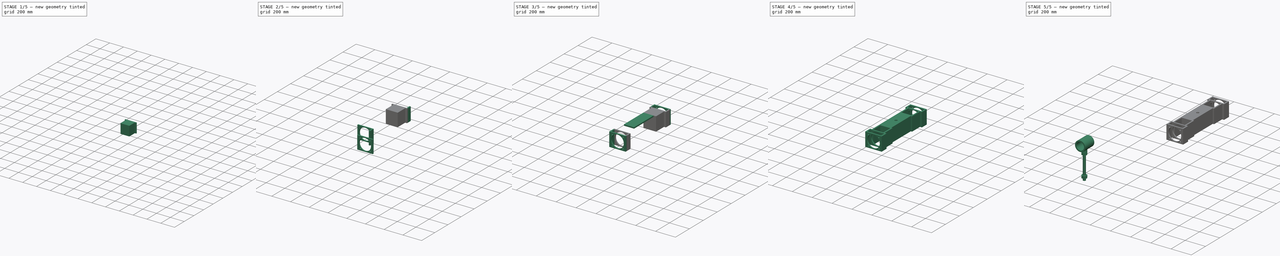
[diagram: build sequence overview — one tinted view per stage of 5, left to right]
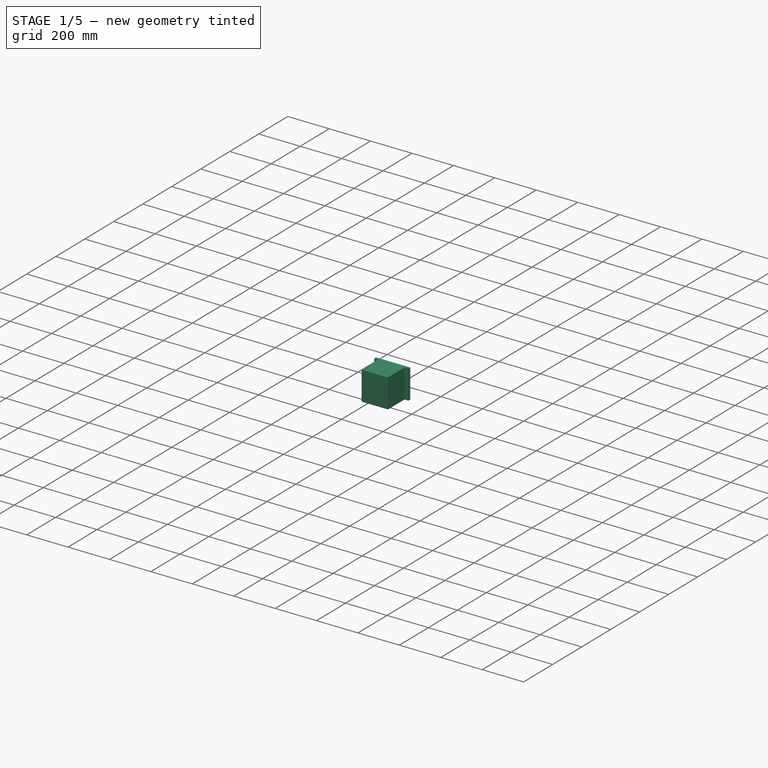
[diagram: stage 1 of 5 — iso view after this stage's code; geometry added in this stage tinted green]
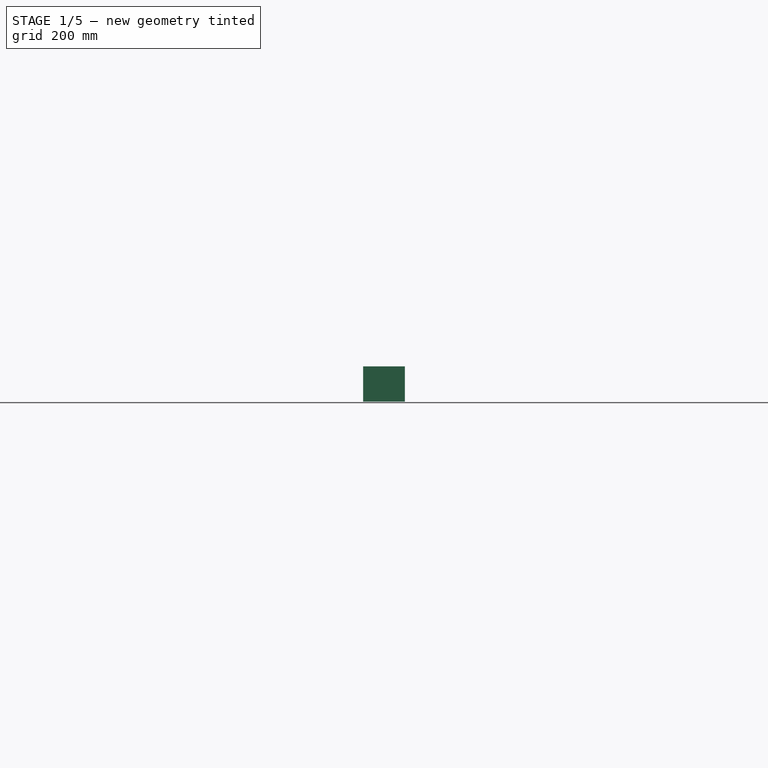
[diagram: stage 1 of 5 — front view after this stage's code; geometry added in this stage tinted green]
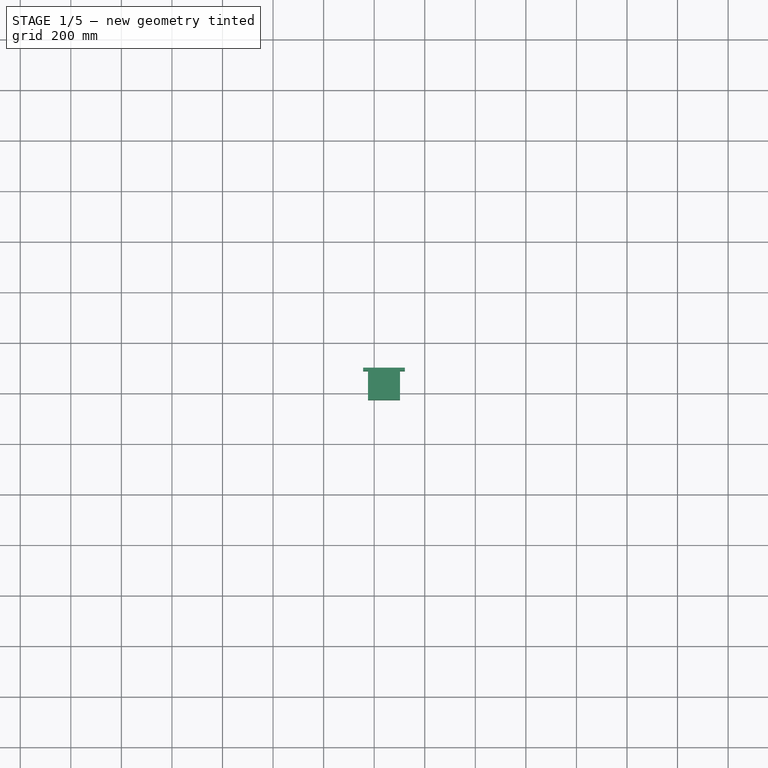
[diagram: stage 1 of 5 — top view after this stage's code; geometry added in this stage tinted green]
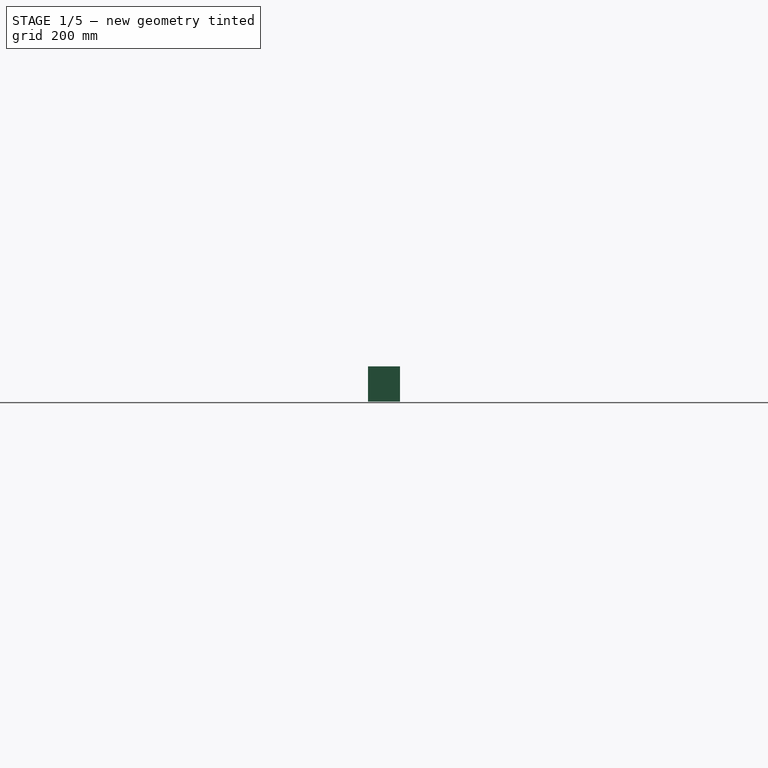
[diagram: stage 1 of 5 — right view after this stage's code; geometry added in this stage tinted green]
FCSTD DOCUMENT  (FreeCAD 0.16R6712 (Git))
Label: MT Tensioner
License: All rights reserved
LicenseURL: http://en.wikipedia.org/wiki/All_rights_reserved
objects: Drawing::FeatureViewPython×28, Part::FeaturePython×9, Part::Box×8, Part::Feature×5, Drawing::FeatureViewPart×5, Sketcher::SketchObject×3, App::DocumentObjectGroup×3, Part::MultiFuse×2, PartDesign::Pocket×2, PartDesign::Pad×1, Part::Cylinder×1, Drawing::FeaturePage×1
note: 34 computed .brp shape members not serialized (recipe doc carries the construction recipe); baked Part::Feature solids carry a one-line shape summary decoded from their .brp

FEATURE [Part::Box] Box  label="Cube"
  Height = 139.7
  Length = 127
  Placement = pos=(-224.637,380.672,-68.4443) rot=(0,0,1;0rad)
  Width = 114.3
FEATURE [Part::Box] Box010  label="Cube010"
  Height = 139.7
  Length = 165.1
  Placement = pos=(-102.435,88.2033,-436.376) rot=(0,0,1;0rad)
  Width = 12.7
FEATURE [Sketcher::SketchObject] Sketch004
  Placement = pos=(-102.435,88.2033,-436.376) rot=(1,0,0;1.5708rad)
  Support = -> Box010 [Face3]
  sketch-geometry (1):
    g0: Circle CenterX=82.55 CenterY=69.85 CenterZ=0 NormalX=0 NormalY=0 NormalZ=1 Radius=63.4873
  constraints (3):
    c: Radius(g0) = 63.4873
    c: DistanceX(g0) = 82.55
    c: DistanceY(g0) = 69.85
FEATURE [PartDesign::Pocket] Pocket
  Length = 12.7
  Placement = pos=(-102.435,88.2033,-436.376) rot=(0,0,1;0rad)
  Sketch = -> Sketch004
  Type = 0
FEATURE [Part::FeaturePython] Clone006  label="Clone of Pocket003005005"  # Draft clone (typed FeaturePython)
  Objects = -> [Pocket]
  Placement = pos=(-243.687,888.672,-68.4443) rot=(0,0,1;0rad)
  Scale = (1,1,1)
FEATURE [Part::FeaturePython] Clone008  label="Clone of Cube"  # Draft clone (typed FeaturePython)
  Objects = -> [Box]
  Placement = pos=(-224.637,774.372,-68.4443) rot=(0,0,1;0rad)
  Scale = (1,1,1)
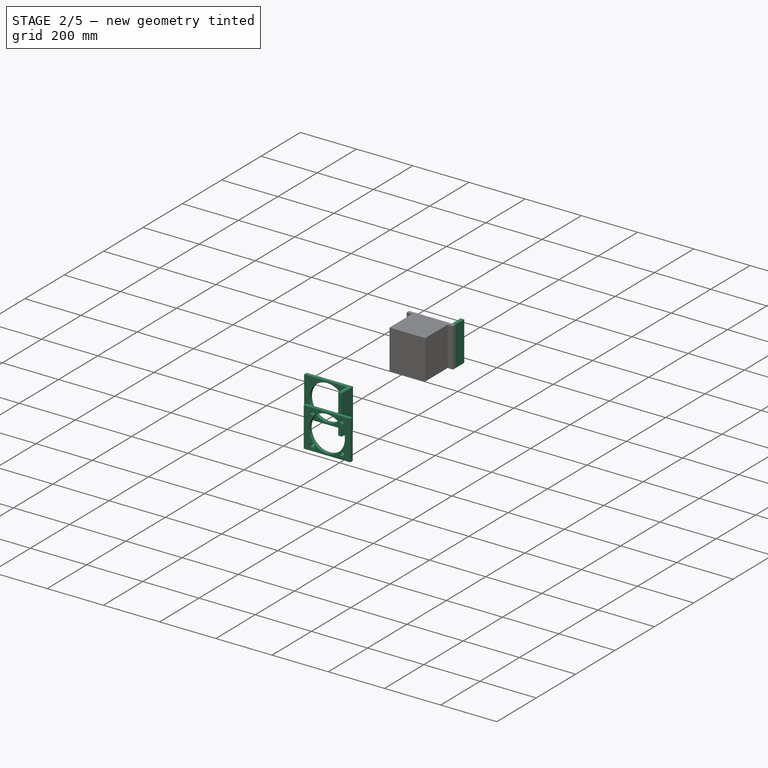
[diagram: stage 2 of 5 — iso view after this stage's code; geometry added in this stage tinted green]
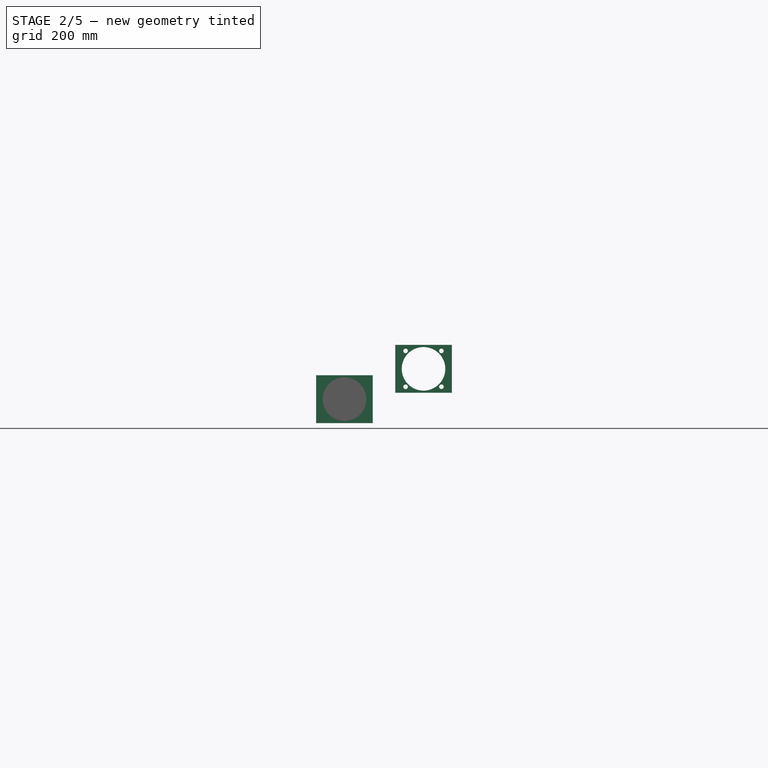
[diagram: stage 2 of 5 — front view after this stage's code; geometry added in this stage tinted green]
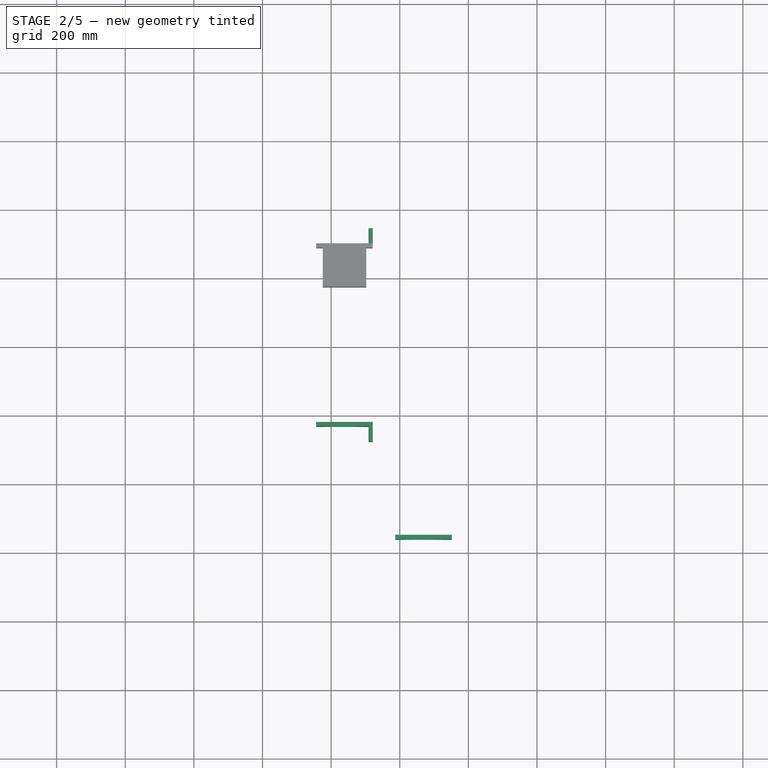
[diagram: stage 2 of 5 — top view after this stage's code; geometry added in this stage tinted green]
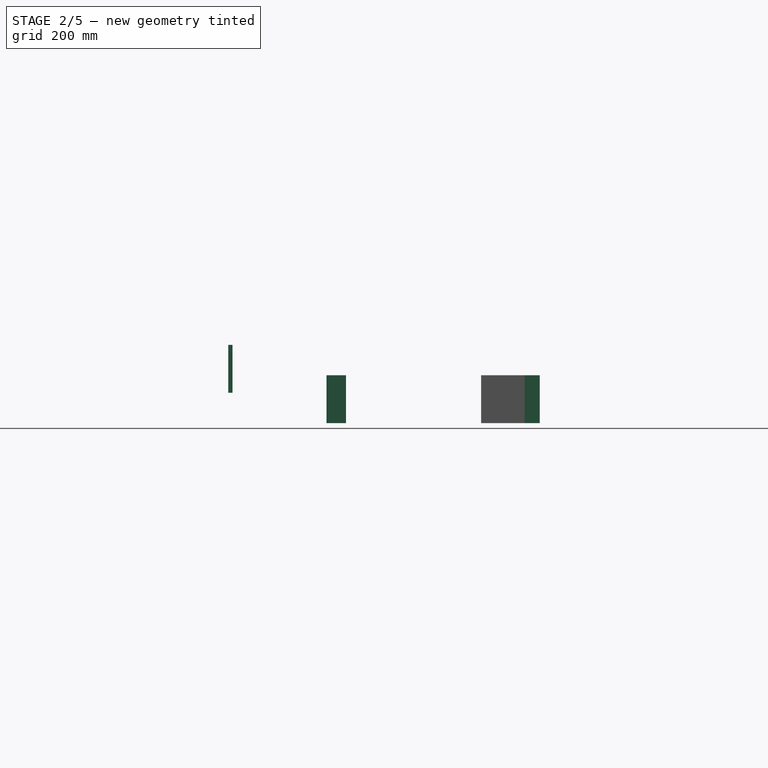
[diagram: stage 2 of 5 — right view after this stage's code; geometry added in this stage tinted green]
FEATURE [Sketcher::SketchObject] Sketch002
  Placement = pos=(0,37.338,0) rot=(0,0.707107,0.707107;3.14159rad)
  sketch-geometry (13):
    g0: Circle CenterX=-121.408 CenterY=142.058 CenterZ=0 NormalX=0 NormalY=0 NormalZ=1 Radius=6.6548
    g1: Circle CenterX=-17.0218 CenterY=142.058 CenterZ=0 NormalX=0 NormalY=0 NormalZ=1 Radius=6.6548
    g2: Circle CenterX=-17.0218 CenterY=37.6712 CenterZ=0 NormalX=0 NormalY=0 NormalZ=1 Radius=6.6548
    g3: Circle CenterX=-121.408 CenterY=37.6712 CenterZ=0 NormalX=0 NormalY=0 NormalZ=1 Radius=6.6548
    g4: LineSegment StartX=-151.765 StartY=159.715 StartZ=0 EndX=13.335 EndY=159.715 EndZ=0
    g5: LineSegment StartX=13.335 StartY=159.715 StartZ=0 EndX=13.335 EndY=20.0144 EndZ=0
    g6: LineSegment StartX=13.335 StartY=20.0144 StartZ=0 EndX=-151.765 EndY=20.0144 EndZ=0
    g7: LineSegment StartX=-151.765 StartY=20.0144 StartZ=0 EndX=-151.765 EndY=159.715 EndZ=0
    g8: Circle CenterX=-69.215 CenterY=89.8644 CenterZ=0 NormalX=0 NormalY=0 NormalZ=1 Radius=63.4873
    g9: LineSegment [constr] StartX=-121.408 StartY=142.058 StartZ=0 EndX=-17.0218 EndY=142.058 EndZ=0
    g10: LineSegment [constr] StartX=-17.0218 StartY=142.058 StartZ=0 EndX=-17.0218 EndY=37.6712 EndZ=0
    g11: LineSegment [constr] StartX=-17.0218 StartY=37.6712 StartZ=0 EndX=-121.408 EndY=37.6712 EndZ=0
    g12: LineSegment [constr] StartX=-121.408 StartY=37.6712 StartZ=0 EndX=-121.408 EndY=142.058 EndZ=0
  constraints (36):
    c: Coincident(g4,g5)
    c: Coincident(g5,g6)
    c: Coincident(g6,g7)
    c: Coincident(g7,g4)
    c: Horizontal(g4)
    c: Horizontal(g6)
    c: Vertical(g5)
    c: Vertical(g7)
    c: Distance(g0,g4) = 17.6568
    c: Distance(g0,g7) = 30.3568
    c: Distance(g3,g6) = 17.6568
    c: Radius(g8) = 63.4873
    c: DistanceX(g2) = -17.0218
    c: DistanceY(g2) = 37.6712
    c: Distance(g1,g5) = 30.3568
    c: Coincident(g9,g10)
    c: Coincident(g10,g11)
    c: Coincident(g11,g12)
    c: Coincident(g12,g9)
    c: Horizontal(g9)
    c: Horizontal(g11)
    c: Vertical(g10)
    c: Vertical(g12)
    c: Coincident(g9,g0)
    c: Coincident(g10,g2)
    c: Radius(g2) = 6.6548
    c: Equal(g2,g1)
    c: Equal(g2,g0)
    c: Equal(g2,g3)
    c: DistanceX(g8) = -69.215
    c: DistanceY(g8) = 89.8644
    c: DistanceX(g3) = -121.408
    c: DistanceY(g3) = 37.6712
    c: Distance(g0,g2) = 147.625
    c: Coincident(g1,g9)
    c: Coincident(g3,g11)
FEATURE [PartDesign::Pad] Pad
  Length = 12.7
  Length2 = 100
  Placement = pos=(0,37.338,0) rot=(0,0.707107,0.707107;3.14159rad)
  Sketch = -> Sketch002
  Type = 0
FEATURE [App::DocumentObjectGroup] Group001  label="Constraints"
FEATURE [App::DocumentObjectGroup] Group002  label="Previous version"
  Group = -> [Compound010002,Part__Mirroring001,Pocket003004,Nut004,Cylinder056,Fusion003,Nut005]
FEATURE [Part::Box] Box008  label="Cube008"
  Height = 139.7
  Length = 12.7
  Placement = pos=(-91.2867,323.834,-68.4443) rot=(0,0,1;0rad)
  Width = 44.1376
FEATURE [Part::Box] Box009  label="Cube009"
  Height = 139.7
  Length = 12.7
  Placement = pos=(-91.2867,901.372,-68.4443) rot=(0,0,1;0rad)
  Width = 44.1376
FEATURE [Part::FeaturePython] Clone005  label="Clone of Pocket"  # Draft clone (typed FeaturePython)
  Objects = -> [Pocket]
  Placement = pos=(-243.687,367.972,-68.4443) rot=(0,0,1;0rad)
  Scale = (1,1,1)
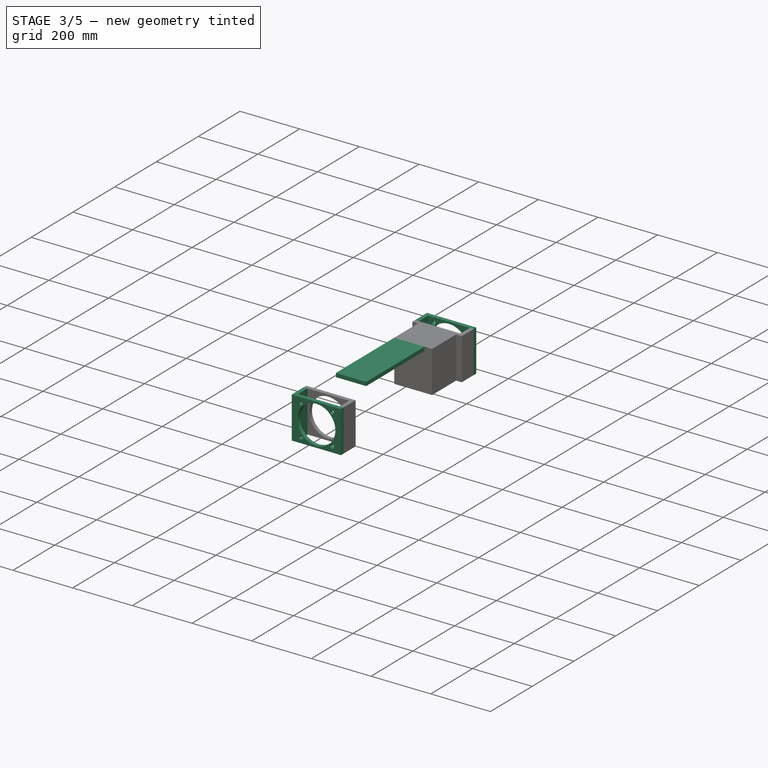
[diagram: stage 3 of 5 — iso view after this stage's code; geometry added in this stage tinted green]
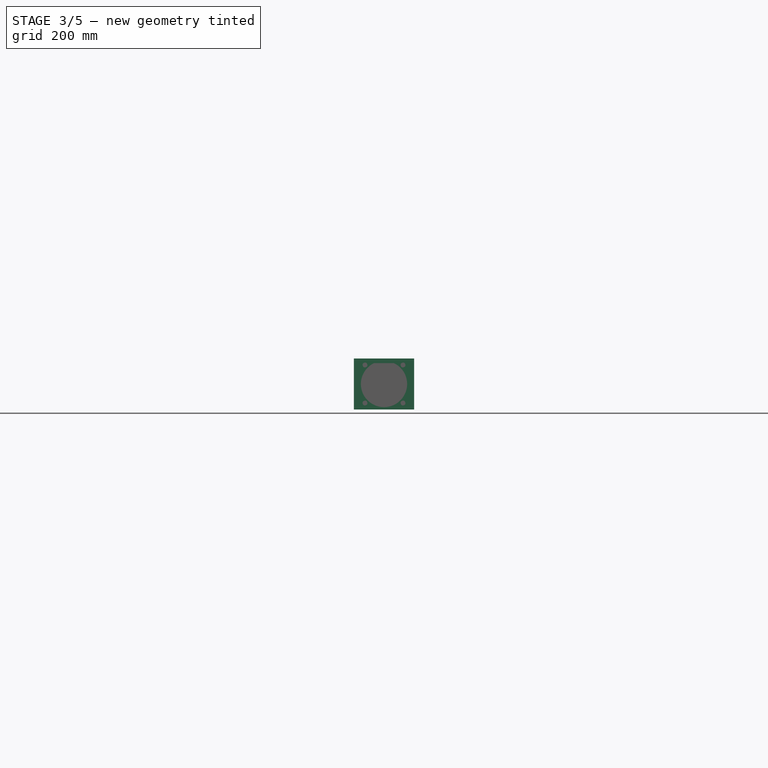
[diagram: stage 3 of 5 — front view after this stage's code; geometry added in this stage tinted green]
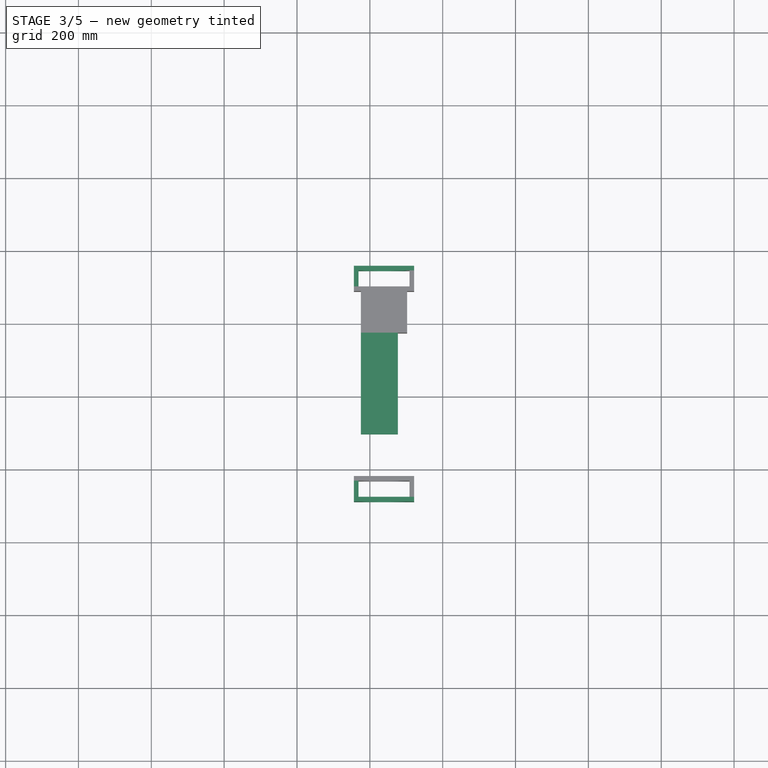
[diagram: stage 3 of 5 — top view after this stage's code; geometry added in this stage tinted green]
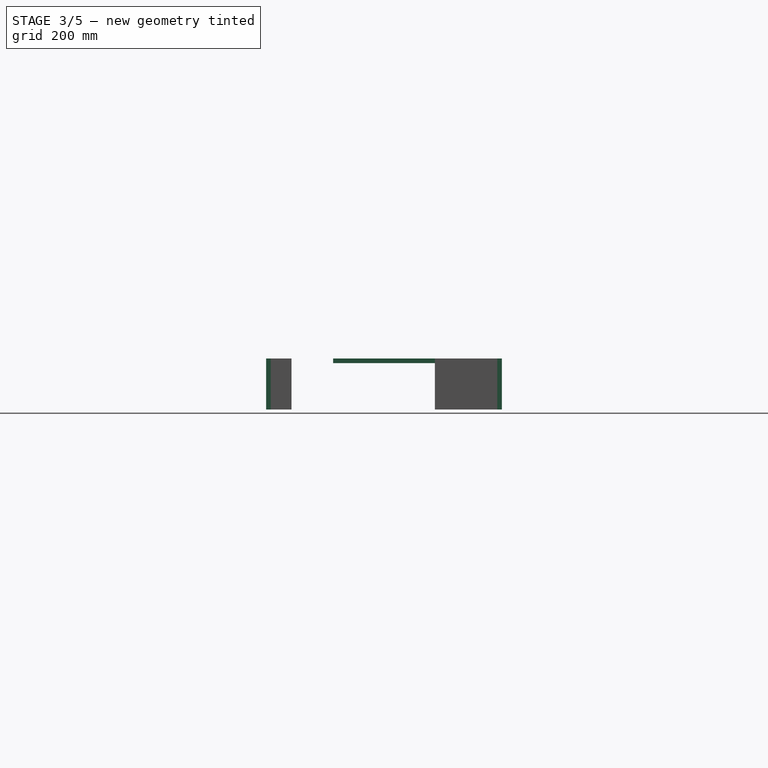
[diagram: stage 3 of 5 — right view after this stage's code; geometry added in this stage tinted green]
FEATURE [Part::Box] Box003  label="Cube003"
  Height = 12.7
  Length = 101.6
  Placement = pos=(-224.637,494.972,58.5557) rot=(0,0,1;0rad)
  Width = 279.4
FEATURE [Part::FeaturePython] Clone  label="Clone of Pad"  # Draft clone (typed FeaturePython)
  Objects = -> [Pad]
  Placement = pos=(-91.9216,323.834,-88.4589) rot=(1,0,0;1.5708rad)
  Scale = (1,1,1)
FEATURE [Part::Box] Box006  label="Cube006"
  Height = 139.7
  Length = 12.7
  Placement = pos=(-243.687,323.834,-68.4443) rot=(0,0,1;0rad)
  Width = 44.1376
FEATURE [Part::Box] Box007  label="Cube007"
  Height = 139.7
  Length = 12.7
  Placement = pos=(-243.687,901.372,-68.4443) rot=(0,0,1;0rad)
  Width = 44.1376
FEATURE [Part::FeaturePython] Clone001  label="Clone of Pad001"  # Draft clone (typed FeaturePython)
  Objects = -> [Pad]
  Placement = pos=(-91.9217,958.209,-88.4589) rot=(1,0,0;1.5708rad)
  Scale = (1,1,1)
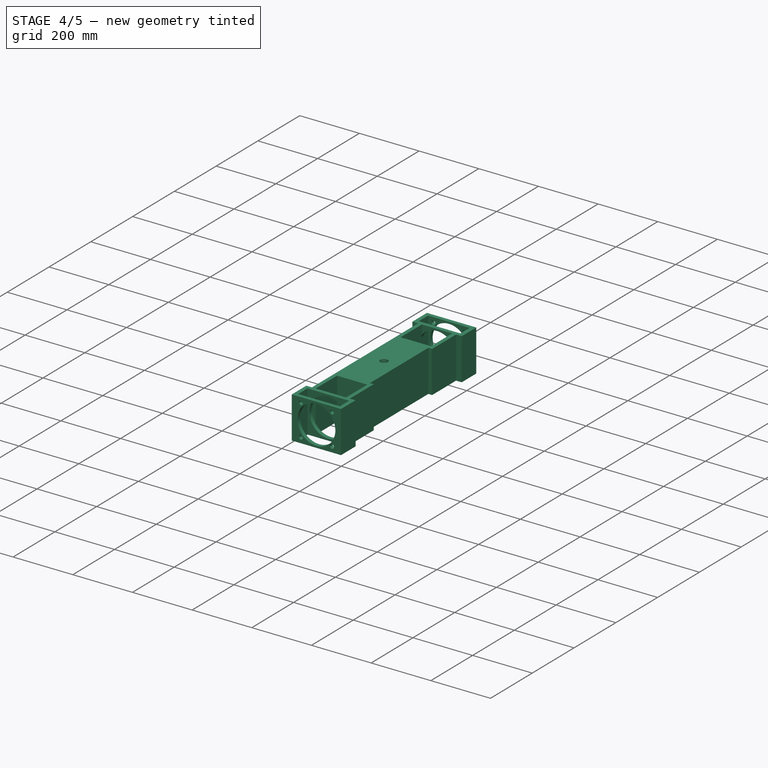
[diagram: stage 4 of 5 — iso view after this stage's code; geometry added in this stage tinted green]
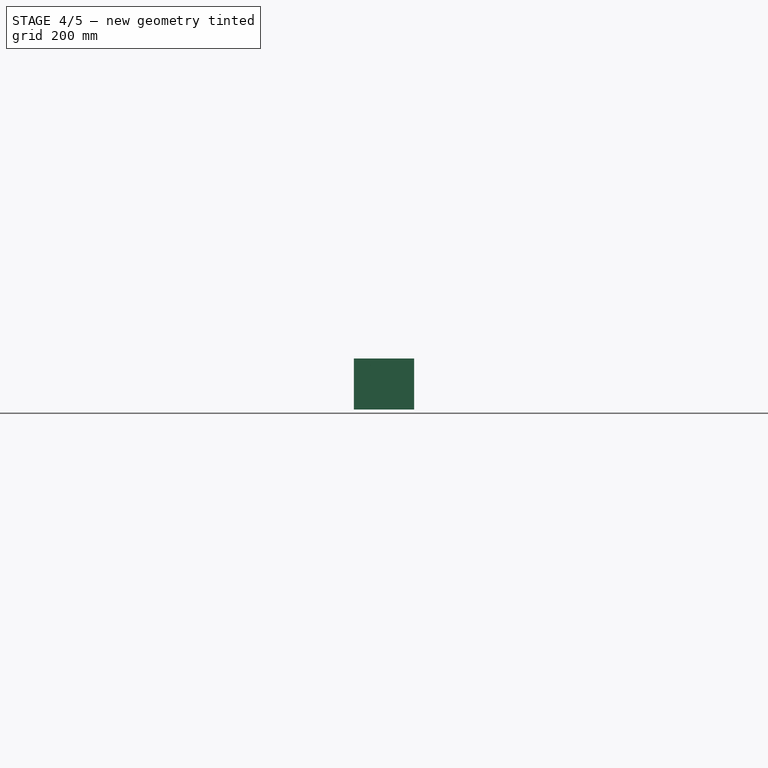
[diagram: stage 4 of 5 — front view after this stage's code; geometry added in this stage tinted green]
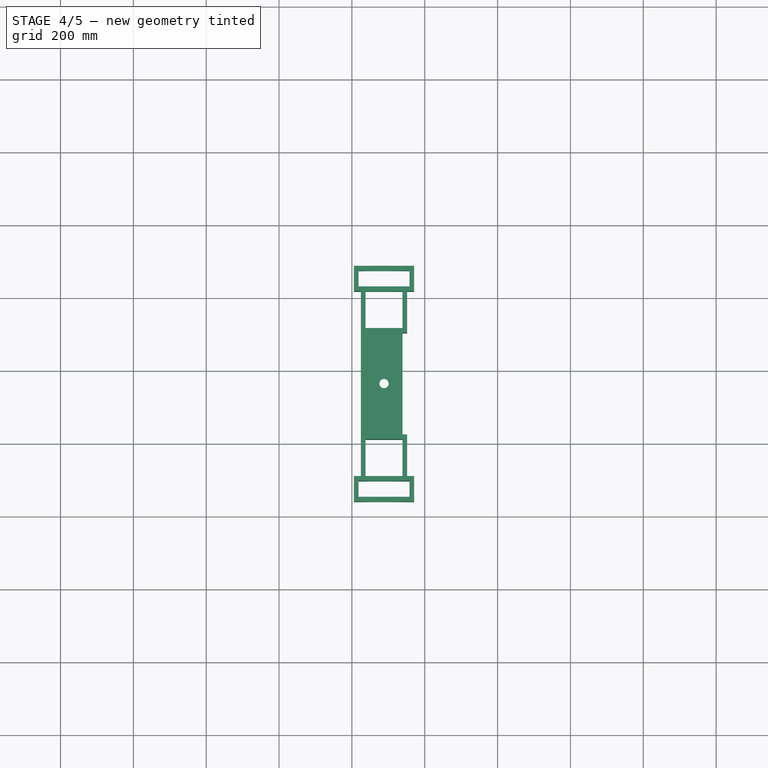
[diagram: stage 4 of 5 — top view after this stage's code; geometry added in this stage tinted green]
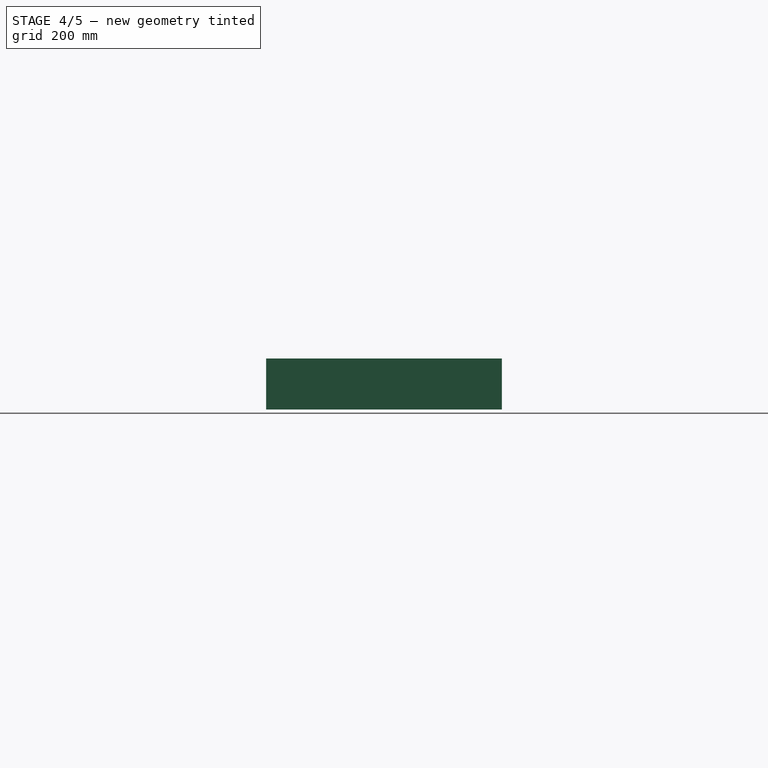
[diagram: stage 4 of 5 — right view after this stage's code; geometry added in this stage tinted green]
FEATURE [Part::Box] Box002  label="Cube002"
  Height = 139.7
  Length = 12.7
  Placement = pos=(-123.037,494.972,-68.4443) rot=(0,0,1;0rad)
  Width = 279.4
FEATURE [Part::MultiFuse] Fusion
  Shapes = -> [Box002,Box003,Box009,Box006,Box007,Clone001,Clone,Clone006,Clone005,Box008,Clone008,Box]
FEATURE [App::DocumentObjectGroup] Group  label="Edit here"
  Group = -> [Pad,Box010,Pocket,Fusion]
FEATURE [Part::FeaturePython] Clone009  label="Clone of Fusion"  # Draft clone (typed FeaturePython)
  Objects = -> [Fusion]
  Placement = pos=(-550.744,1129.27,-180.04) rot=(0,0,1;0rad)
  Scale = (1,1,1)
FEATURE [Sketcher::SketchObject] Sketch003
  ExternalGeometry = -> [Clone009]
  Placement = pos=(-550.744,1129.27,-108.784) rot=(0,0,1;0rad)
  Support = -> Clone009 [Face21]
  sketch-geometry (9):
    g0: Circle CenterX=-161.137 CenterY=634.672 CenterZ=0 NormalX=0 NormalY=0 NormalZ=1 Radius=12.7
    g1: LineSegment StartX=-211.937 StartY=888.672 StartZ=0 EndX=-110.337 EndY=888.672 EndZ=0
    g2: LineSegment StartX=-110.337 StartY=888.672 StartZ=0 EndX=-110.337 EndY=787.072 EndZ=0
    g3: LineSegment StartX=-110.337 StartY=787.072 StartZ=0 EndX=-211.937 EndY=787.072 EndZ=0
    g4: LineSegment StartX=-211.937 StartY=787.072 StartZ=0 EndX=-211.937 EndY=888.672 EndZ=0
    g5: LineSegment StartX=-211.937 StartY=380.672 StartZ=0 EndX=-110.337 EndY=380.672 EndZ=0
    g6: LineSegment StartX=-110.337 StartY=380.672 StartZ=0 EndX=-110.337 EndY=482.272 EndZ=0
    g7: LineSegment StartX=-110.337 StartY=482.272 StartZ=0 EndX=-211.937 EndY=482.272 EndZ=0
    g8: LineSegment StartX=-211.937 StartY=482.272 StartZ=0 EndX=-211.937 EndY=380.672 EndZ=0
  constraints (27):
    c: Radius(g0) = 12.7
    c: Coincident(g1,g2)
    c: Coincident(g2,g3)
    c: Coincident(g4,g1)
    c: Horizontal(g1)
    c: Horizontal(g3)
    c: Vertical(g2)
    c: Vertical(g4)
    c: Coincident(g5,g6)
    c: Coincident(g6,g7)
    c: Coincident(g7,g8)
    c: Coincident(g8,g5)
    c: Horizontal(g5)
    c: Horizontal(g7)
    c: Vertical(g6)
    c: Vertical(g8)
    c: Equal(g1,g2)
    c: Equal(g5,g6)
    c: Distance(g3) = 101.6
    c: Distance(g7) = 101.6
    c: Distance(g0,g-3) = 63.5
    c: Distance(g0,g-5) = 139.7
    c: Distance(g3,g-3) = 12.7
    c: Coincident(g4,g3)
    c: Distance(g3,g-4) = 12.7
    c: Distance(g7,g-5) = 12.7
    c: Distance(g7,g-3) = 12.7
FEATURE [PartDesign::Pocket] Pocket003005
  Length = 139.7
  Placement = pos=(-550.744,1129.27,-180.04) rot=(0,0,1;0rad)
  Sketch = -> Sketch003
  Type = 0
FEATURE [Part::Feature] Pocket003005001  label="Pocket004"
  Placement = pos=(-550.744,1129.27,-180.04) rot=(0,0,1;0rad)
  shape: bbox 165.1 x 647.1 x 139.7 mm, 88 faces (baked)
FEATURE [Drawing::FeatureViewPart] Ortho001  label="Ortho_-1_1"
  Direction = (-0.57735,-0.57735,0.57735)
  HiddenWidth = 0.15
  LineWidth = 0.35
  Rotation = -60
  Scale = 0.2
  ShowHiddenLines = false
  ShowSmoothLines = false
  Source = -> Pocket003005001
  Tolerance = 0.05
  ViewResult = <blob: 10028 chars omitted>
  Visible = true
  X = 560.134
  Y = 205.23
FEATURE [Drawing::FeatureViewPart] Ortho002  label="Ortho_-1_0"
  Direction = (-1,0,0)
  HiddenWidth = 0.15
  LineWidth = 0.35
  Rotation = 90
  Scale = 0.2
  ShowHiddenLines = false
  ShowSmoothLines = false
  Source = -> Pocket003005001
  Tolerance = 0.05
  ViewResult = <blob: 8114 chars omitted>
  Visible = true
  X = 444.33
  Y = 204.17
FEATURE [Drawing::FeatureViewPart] Ortho003  label="Ortho_0_1"
  Direction = (0,0,1)
  HiddenWidth = 0.15
  LineWidth = 0.35
  Rotation = 0
  Scale = 0.2
  ShowHiddenLines = false
  ShowSmoothLines = false
  Source = -> Pocket003005001
  Tolerance = 0.05
  ViewResult = <blob: 7216 chars omitted>
  Visible = true
  X = 220.99
  Y = 441.38
FEATURE [Drawing::FeatureViewPart] Ortho004  label="Ortho_1_0"
  Direction = (0,1,0)
  HiddenWidth = 0.15
  LineWidth = 0.35
  Rotation = -90
  Scale = 0.5
  ShowHiddenLines = false
  ShowSmoothLines = false
  Source = -> Pad
  Tolerance = 0.05
  ViewResult = <g id="Ortho_1_0"\n   transform="rotate(-90,364.893,288.32) translate(364.893,288.32) scale(0.5,0.5)"\n  >\n<g   stroke="rgb(0, 0, 0)"\n   stroke-width="0.7"\n   stroke-linecap="butt"\n   stroke-linejoin="miter"\n   fill="none"\n   transform="scale(1,-1)"\n  >\n<path id= "1" d=" M 159.715 151.765 L 159.715 -13.335 " />\n<path id= "2" d=" M 159.715 -13.335 L 20.0144 -13.335 " />\n<path id= "3" d=" M 20.0144 -13.335 L 20.0144 151.765 " />\n<path id= "4" d=" M 20.0144 151.765 L 159.715 151.765 " />\n<circle cx ="89.8644" cy ="69.215" r ="63.4873" /><circle cx ="142.058" cy ="121.408" r ="6.6548" /><circle cx ="142.058" cy ="17.0218" r ="6.6548" /><circle cx ="37.6712" cy ="121.408" r ="6.6548" /><circle cx ="37.6712" cy ="17.0218" r ="6.6548" /></g>\n</g>
  Visible = true
  X = 364.893
  Y = 288.32
FEATURE [Drawing::FeatureViewPart] Ortho005  label="Ortho_1_001"
  Direction = (0,1,0)
  HiddenWidth = 0.15
  LineWidth = 0.35
  Rotation = -90
  Scale = 0.5
  ShowHiddenLines = false
  ShowSmoothLines = false
  Source = -> Pocket
  Tolerance = 0.05
  ViewResult = <g id="Ortho_1_001"\n   transform="rotate(-90,320.342,-129.65) translate(320.342,-129.65) scale(0.5,0.5)"\n  >\n<g   stroke="rgb(0, 0, 0)"\n   stroke-width="0.7"\n   stroke-linecap="butt"\n   stroke-linejoin="miter"\n   fill="none"\n   transform="scale(1,-1)"\n  >\n<path id= "1" d=" M -436.376 -102.435 L -296.676 -102.435 " />\n<path id= "2" d=" M -296.676 -102.435 L -296.676 62.6648 " />\n<path id= "3" d=" M -436.376 -102.435 L -436.376 62.6648 " />\n<path id= "4" d=" M -436.376 62.6648 L -296.676 62.6648 " />\n<circle cx ="-366.526" cy ="-19.8852" r ="63.4873" /></g>\n</g>
  Visible = true
  X = 320.342
  Y = -129.65
FEATURE [Drawing::FeatureViewPython] dim001  # drawing view (typed FeaturePython)
  Rotation = 0
  ViewResult = <g> \n  <line x1="371.559500" y1="90.538000" x2="371.559500" y2="100.984190" style="stroke:rgb(0,0,255);stroke-width:0.50" />\n<line x1="289.009600" y1="90.538000" x2="289.009600" y2="100.984190" style="stroke:rgb(0,0,255);stroke-width:0.50" />\n<line x1="371.559500" y1="99.984190" x2="289.009600" y2="99.984190" style="stroke:rgb(0,0,255);stroke-width:0.50" /> \n  <polygon points="289.009600,99.984190 292.009600,100.984190 293.009600,99.984190 292.009600,98.984190" style="fill:rgb(0,0,255);stroke:rgb(0,0,255);stroke-width:0" /><polygon points="371.559500,99.984190 368.559500,98.984190 367.559500,99.984190 368.559500,100.984190" style="fill:rgb(0,0,255);stroke:rgb(0,0,255);stroke-width:0" /> \n  <text x="330.284550" y="97.984190" font-family="inherit" font-size="3.6" fill="rgb(0,0,255)" text-anchor="middle" transform="rotate(0.000000 330.284550,97.984190)" >6.5</text> </g>
  Visible = true
  X = 0
  Y = 0
  arrowL1 = 3
  arrowL2 = 1
  arrowW = 2
  arrow_scheme = 0
  autoPlaceOffset = 2
  autoPlaceText = true
  click1_x = 315.188
  click1_y = 99.9842
  click2_x = 315.188
  click2_y = 99.9842
  comma_decimal_place = false
  dimension_line_overshoot = 1
  gap_datum_points = 2
  halfDimension_linear = false
  lineColor = rgb(0,0,255)
  strokeWidth = 0.5
  textFormat_linear = %(value)3.3f
  textRenderer_color = rgb(0,0,255)
  textRenderer_family = inherit
  textRenderer_size = 3.6
  unit_custom_scale = 1
  unit_scheme = 2
FEATURE [Drawing::FeatureViewPython] dim002  # drawing view (typed FeaturePython)
  Rotation = 0
  ViewResult = <g> \n  <line x1="373.559500" y1="88.538000" x2="383.320497" y2="88.538000" style="stroke:rgb(0,0,255);stroke-width:0.50" />\n<line x1="373.559500" y1="18.688000" x2="383.320497" y2="18.688000" style="stroke:rgb(0,0,255);stroke-width:0.50" />\n<line x1="382.320497" y1="88.538000" x2="382.320497" y2="18.688000" style="stroke:rgb(0,0,255);stroke-width:0.50" /> \n  <polygon points="382.320497,18.688000 381.320497,21.688000 382.320497,22.688000 383.320497,21.688000" style="fill:rgb(0,0,255);stroke:rgb(0,0,255);stroke-width:0" /><polygon points="382.320497,88.538000 383.320497,85.538000 382.320497,84.538000 381.320497,85.538000" style="fill:rgb(0,0,255);stroke:rgb(0,0,255);stroke-width:0" /> \n  <text x="380.320497" y="53.613000" font-family="inherit" font-size="3.6" fill="rgb(0,0,255)" text-anchor="middle" transform="rotate(-90.000000 380.320497,53.613000)" >5.5</text> </g>
  Visible = true
  X = 0
  Y = 0
  arrowL1 = 3
  arrowL2 = 1
  arrowW = 2
  arrow_scheme = 0
  autoPlaceOffset = 2
  autoPlaceText = true
  click1_x = 382.32
  click1_y = 57.6099
  click2_x = 382.32
  click2_y = 57.6099
  comma_decimal_place = false
  dimension_line_overshoot = 1
  gap_datum_points = 2
  halfDimension_linear = false
  lineColor = rgb(0,0,255)
  strokeWidth = 0.5
  textFormat_linear = %(value)3.3f
  textRenderer_color = rgb(0,0,255)
  textRenderer_family = inherit
  textRenderer_size = 3.6
  unit_custom_scale = 1
  unit_scheme = 2
FEATURE [Drawing::FeatureViewPython] dim003  # drawing view (typed FeaturePython)
  Rotation = 0
  ViewResult = <g> \n  <line x1="289.010500" y1="206.462500" x2="289.010500" y2="196.111688" style="stroke:rgb(0,0,255);stroke-width:0.50" />\n<line x1="371.560500" y1="206.462500" x2="371.560500" y2="196.111688" style="stroke:rgb(0,0,255);stroke-width:0.50" />\n<line x1="289.010500" y1="197.111688" x2="371.560500" y2="197.111688" style="stroke:rgb(0,0,255);stroke-width:0.50" /> \n  <polygon points="371.560500,197.111688 368.560500,196.111688 367.560500,197.111688 368.560500,198.111688" style="fill:rgb(0,0,255);stroke:rgb(0,0,255);stroke-width:0" /><polygon points="289.010500,197.111688 292.010500,198.111688 293.010500,197.111688 292.010500,196.111688" style="fill:rgb(0,0,255);stroke:rgb(0,0,255);stroke-width:0" /> \n  <text x="330.285500" y="195.111688" font-family="inherit" font-size="3.6" fill="rgb(0,0,255)" text-anchor="middle" transform="rotate(0.000000 330.285500,195.111688)" >6.5</text> </g>
  Visible = true
  X = 0
  Y = 0
  arrowL1 = 3
  arrowL2 = 1
  arrowW = 2
  arrow_scheme = 0
  autoPlaceOffset = 2
  autoPlaceText = true
  click1_x = 356.61
  click1_y = 197.112
  click2_x = 356.61
  click2_y = 197.112
  comma_decimal_place = false
  dimension_line_overshoot = 1
  gap_datum_points = 2
  halfDimension_linear = false
  lineColor = rgb(0,0,255)
  strokeWidth = 0.5
  textFormat_linear = %(value)3.3f
  textRenderer_color = rgb(0,0,255)
  textRenderer_family = inherit
  textRenderer_size = 3.6
  unit_custom_scale = 1
  unit_scheme = 2
FEATURE [Drawing::FeatureViewPython] dim004  # drawing view (typed FeaturePython)
  Rotation = 0
  ViewResult = <g> \n  <line x1="373.560500" y1="208.462500" x2="383.320497" y2="208.462500" style="stroke:rgb(0,0,255);stroke-width:0.50" />\n<line x1="373.560500" y1="278.312800" x2="383.320497" y2="278.312800" style="stroke:rgb(0,0,255);stroke-width:0.50" />\n<line x1="382.320497" y1="208.462500" x2="382.320497" y2="278.312800" style="stroke:rgb(0,0,255);stroke-width:0.50" /> \n  <polygon points="382.320497,278.312800 383.320497,275.312800 382.320497,274.312800 381.320497,275.312800" style="fill:rgb(0,0,255);stroke:rgb(0,0,255);stroke-width:0" /><polygon points="382.320497,208.462500 381.320497,211.462500 382.320497,212.462500 383.320497,211.462500" style="fill:rgb(0,0,255);stroke:rgb(0,0,255);stroke-width:0" /> \n  <text x="380.320497" y="243.387650" font-family="inherit" font-size="3.6" fill="rgb(0,0,255)" text-anchor="middle" transform="rotate(-90.000000 380.320497,243.387650)" >5.5</text> </g>
  Visible = true
  X = 0
  Y = 0
  arrowL1 = 3
  arrowL2 = 1
  arrowW = 2
  arrow_scheme = 0
  autoPlaceOffset = 2
  autoPlaceText = true
  click1_x = 382.32
  click1_y = 239.962
  click2_x = 382.32
  click2_y = 239.962
  comma_decimal_place = false
  dimension_line_overshoot = 1
  gap_datum_points = 2
  halfDimension_linear = false
  lineColor = rgb(0,0,255)
  strokeWidth = 0.5
  textFormat_linear = %(value)3.3f
  textRenderer_color = rgb(0,0,255)
  textRenderer_family = inherit
  textRenderer_size = 3.6
  unit_custom_scale = 1
  unit_scheme = 2
FEATURE [Drawing::FeatureViewPython] dim005  # drawing view (typed FeaturePython)
  Rotation = 0
  ViewResult = <g> \n  <line x1="158.250000" y1="225.926800" x2="163.868435" y2="225.926800" style="stroke:rgb(0,0,255);stroke-width:0.50" />\n<line x1="158.250000" y1="253.866800" x2="163.868435" y2="253.866800" style="stroke:rgb(0,0,255);stroke-width:0.50" />\n<line x1="162.868435" y1="225.926800" x2="162.868435" y2="253.866800" style="stroke:rgb(0,0,255);stroke-width:0.50" /> \n  <polygon points="162.868435,253.866800 163.868435,250.866800 162.868435,249.866800 161.868435,250.866800" style="fill:rgb(0,0,255);stroke:rgb(0,0,255);stroke-width:0" /><polygon points="162.868435,225.926800 161.868435,228.926800 162.868435,229.926800 163.868435,228.926800" style="fill:rgb(0,0,255);stroke:rgb(0,0,255);stroke-width:0" /> \n  <text x="160.868435" y="239.896800" font-family="inherit" font-size="3.6" fill="rgb(0,0,255)" text-anchor="middle" transform="rotate(-90.000000 160.868435,239.896800)" >5.5</text> </g>
  Visible = true
  X = 0
  Y = 0
  arrowL1 = 3
  arrowL2 = 1
  arrowW = 2
  arrow_scheme = 0
  autoPlaceOffset = 2
  autoPlaceText = true
  click1_x = 162.868
  click1_y = 252.847
  click2_x = 162.868
  click2_y = 252.847
  comma_decimal_place = false
  dimension_line_overshoot = 1
  gap_datum_points = 2
  halfDimension_linear = false
  lineColor = rgb(0,0,255)
  strokeWidth = 0.5
  textFormat_linear = %(value)3.3f
  textRenderer_color = rgb(0,0,255)
  textRenderer_family = inherit
  textRenderer_size = 3.6
  unit_custom_scale = 1
  unit_scheme = 2
FEATURE [Drawing::FeatureViewPython] dim006  # drawing view (typed FeaturePython)
  Rotation = 0
  ViewResult = <g> \n  <line x1="26.834000" y1="255.866800" x2="26.834000" y2="262.753142" style="stroke:rgb(0,0,255);stroke-width:0.50" />\n<line x1="156.250000" y1="255.866800" x2="156.250000" y2="262.753142" style="stroke:rgb(0,0,255);stroke-width:0.50" />\n<line x1="26.834000" y1="261.753142" x2="156.250000" y2="261.753142" style="stroke:rgb(0,0,255);stroke-width:0.50" /> \n  <polygon points="156.250000,261.753142 153.250000,260.753142 152.250000,261.753142 153.250000,262.753142" style="fill:rgb(0,0,255);stroke:rgb(0,0,255);stroke-width:0" /><polygon points="26.834000,261.753142 29.834000,262.753142 30.834000,261.753142 29.834000,260.753142" style="fill:rgb(0,0,255);stroke:rgb(0,0,255);stroke-width:0" /> \n  <text x="91.542000" y="259.753142" font-family="inherit" font-size="3.6" fill="rgb(0,0,255)" text-anchor="middle" transform="rotate(0.000000 91.542000,259.753142)" >25.476</text> </g>
  Visible = true
  X = 0
  Y = 0
  arrowL1 = 3
  arrowL2 = 1
  arrowW = 2
  arrow_scheme = 0
  autoPlaceOffset = 2
  autoPlaceText = true
  click1_x = 127.624
  click1_y = 261.753
  click2_x = 127.624
  click2_y = 261.753
  comma_decimal_place = false
  dimension_line_overshoot = 1
  gap_datum_points = 2
  halfDimension_linear = false
  lineColor = rgb(0,0,255)
  strokeWidth = 0.5
  textFormat_linear = %(value)3.3f
  textRenderer_color = rgb(0,0,255)
  textRenderer_family = inherit
  textRenderer_size = 3.6
  unit_custom_scale = 1
  unit_scheme = 2
FEATURE [Drawing::FeatureViewPython] dia001  # drawing view (typed FeaturePython)
  Rotation = 0
  ViewResult = <g>  <circle cx ="330.284600" cy ="53.613000" r="0.250000" stroke="none" fill="rgb(0,0,255)" /> \n<line x1="302.333145" y1="27.614681" x2="353.528138" y2="75.232372" style="stroke:rgb(0,0,255);stroke-width:0.50" />\n<polygon points="307.041062,31.993628 308.556680,34.769038 309.969968,34.717873 309.918803,33.304585" style="fill:rgb(0,0,255);stroke:rgb(0,0,255);stroke-width:0" />\n<polygon points="353.528138,75.232372 352.012520,72.456962 350.599232,72.508127 350.650397,73.921415" style="fill:rgb(0,0,255);stroke:rgb(0,0,255);stroke-width:0" />\n<line x1="302.333145" y1="27.614681" x2="292.744806" y2="27.614681" style="stroke:rgb(0,0,255);stroke-width:0.50" />\n<text x="297.538975" y="25.614681" font-family="inherit" font-size="3.6" fill="rgb(0,0,255)" text-anchor="middle" transform="rotate(0.000000 297.538975,25.614681)" >Ø4.999</text> </g>
  Visible = true
  X = 0
  Y = 0
  arrowL1 = 3
  arrowL2 = 1
  arrowW = 2
  arrow_scheme = 0
  autoPlaceOffset = 2
  autoPlaceText = true
  centerPointDia = 0.5
  click1_x = 302.333
  click1_y = 27.6147
  click2_x = 292.745
  click2_y = 27.0737
  click3_x = 292.745
  click3_y = 27.0737
  comma_decimal_place = false
  lineColor = rgb(0,0,255)
  strokeWidth = 0.5
  textFormat_circular = Ø%(value)3.3f
  textRenderer_color = rgb(0,0,255)
  textRenderer_family = inherit
  textRenderer_size = 3.6
  unit_custom_scale = 1
  unit_scheme = 2
FEATURE [Drawing::FeatureViewPython] dia003  # drawing view (typed FeaturePython)
  Rotation = 0
  ViewResult = <g>  <circle cx ="304.189000" cy ="217.291000" r="0.250000" stroke="none" fill="rgb(0,0,255)" /> \n<line x1="286.107393" y1="213.619867" x2="307.449869" y2="217.953059" style="stroke:rgb(0,0,255);stroke-width:0.50" />\n<polygon points="300.928131,216.628941 298.187087,215.052021 297.008110,215.833054 297.789143,217.012031" style="fill:rgb(0,0,255);stroke:rgb(0,0,255);stroke-width:0" />\n<polygon points="307.449869,217.953059 310.190913,219.529979 311.369890,218.748946 310.588857,217.569969" style="fill:rgb(0,0,255);stroke:rgb(0,0,255);stroke-width:0" />\n<line x1="286.107393" y1="213.619867" x2="272.308563" y2="213.619867" style="stroke:rgb(0,0,255);stroke-width:0.50" />\n<text x="279.207978" y="211.619867" font-family="inherit" font-size="3.6" fill="rgb(0,0,255)" text-anchor="middle" transform="rotate(0.000000 279.207978,211.619867)" >Ø0.524</text> </g>
  Visible = true
  X = 0
  Y = 0
  arrowL1 = 3
  arrowL2 = 1
  arrowW = 2
  arrow_scheme = 0
  autoPlaceOffset = 2
  autoPlaceText = true
  centerPointDia = 0.5
  click1_x = 286.107
  click1_y = 213.62
  click2_x = 272.309
  click2_y = 215.192
  click3_x = 272.309
  click3_y = 215.192
  comma_decimal_place = false
  lineColor = rgb(0,0,255)
  strokeWidth = 0.5
  textFormat_circular = Ø%(value)3.3f
  textRenderer_color = rgb(0,0,255)
  textRenderer_family = inherit
  textRenderer_size = 3.6
  unit_custom_scale = 1
  unit_scheme = 2
FEATURE [Drawing::FeatureViewPython] dia002  # drawing view (typed FeaturePython)
  Rotation = 0
  ViewResult = <g>  <circle cx ="330.285500" cy ="243.387800" r="0.250000" stroke="none" fill="rgb(0,0,255)" /> \n<line x1="285.528891" y1="232.407237" x2="361.114874" y2="250.951463" style="stroke:rgb(0,0,255);stroke-width:0.50" />\n<polygon points="299.456126,235.824137 302.131447,237.510155 303.340918,236.777230 302.607993,235.567759" style="fill:rgb(0,0,255);stroke:rgb(0,0,255);stroke-width:0" />\n<polygon points="361.114874,250.951463 358.439553,249.265445 357.230082,249.998370 357.963007,251.207841" style="fill:rgb(0,0,255);stroke:rgb(0,0,255);stroke-width:0" />\n<line x1="285.528891" y1="232.407237" x2="271.342994" y2="232.407237" style="stroke:rgb(0,0,255);stroke-width:0.50" />\n<text x="278.435942" y="230.407237" font-family="inherit" font-size="3.6" fill="rgb(0,0,255)" text-anchor="middle" transform="rotate(0.000000 278.435942,230.407237)" >Ø4.999</text> </g>
  Visible = true
  X = 0
  Y = 0
  arrowL1 = 3
  arrowL2 = 1
  arrowW = 2
  arrow_scheme = 0
  autoPlaceOffset = 2
  autoPlaceText = true
  centerPointDia = 0.5
  click1_x = 285.529
  click1_y = 232.407
  click2_x = 271.343
  click2_y = 231.804
  click3_x = 271.343
  click3_y = 231.804
  comma_decimal_place = false
  lineColor = rgb(0,0,255)
  strokeWidth = 0.5
  textFormat_circular = Ø%(value)3.3f
  textRenderer_color = rgb(0,0,255)
  textRenderer_family = inherit
  textRenderer_size = 3.6
  unit_custom_scale = 1
  unit_scheme = 2
FEATURE [Drawing::FeatureViewPython] dim007  # drawing view (typed FeaturePython)
  Rotation = 0
  ViewResult = <g> <line x1="287.009600" y1="18.688000" x2="281.545424" y2="18.688000" style="stroke:rgb(0,0,255);stroke-width:0.50" />\n<line x1="328.284517" y1="53.613000" x2="281.545424" y2="53.613000" style="stroke:rgb(0,0,255);stroke-width:0.50" />\n<line x1="282.545424" y1="18.688000" x2="282.545424" y2="53.613000" style="stroke:rgb(0,0,255);stroke-width:0.50" />\n<polygon points="282.545424,18.688000 281.545424,21.688000 282.545424,22.688000 283.545424,21.688000" style="fill:rgb(0,0,255);stroke:rgb(0,0,255);stroke-width:0" />\n<polygon points="282.545424,53.613000 283.545424,50.613000 282.545424,49.613000 281.545424,50.613000" style="fill:rgb(0,0,255);stroke:rgb(0,0,255);stroke-width:0" />\n<text x="280.545424" y="36.150500" font-family="inherit" font-size="3.6" fill="rgb(0,0,255)" text-anchor="middle" transform="rotate(-90.000000 280.545424,36.150500)" >2.75</text> </g> 
  Visible = true
  X = 0
  Y = 0
  arrowL1 = 3
  arrowL2 = 1
  arrowW = 2
  arrow_scheme = 0
  autoPlaceOffset = 2
  autoPlaceText = true
  click1_x = 282.545
  click1_y = 42.7326
  click2_x = 282.545
  click2_y = 42.7326
  comma_decimal_place = false
  dimension_line_overshoot = 1
  gap_datum_points = 2
  halfDimension_linear = false
  lineColor = rgb(0,0,255)
  strokeWidth = 0.5
  textFormat_linear = %(value)3.3f
  textRenderer_color = rgb(0,0,255)
  textRenderer_family = inherit
  textRenderer_size = 3.6
  unit_custom_scale = 1
  unit_scheme = 2
FEATURE [Drawing::FeatureViewPython] dim008  # drawing view (typed FeaturePython)
  Rotation = 0
  ViewResult = <g> <line x1="289.009600" y1="16.688000" x2="289.009600" y2="12.202461" style="stroke:rgb(0,0,255);stroke-width:0.50" />\n<line x1="330.284600" y1="51.612930" x2="330.284600" y2="12.202461" style="stroke:rgb(0,0,255);stroke-width:0.50" />\n<line x1="289.009600" y1="13.202461" x2="330.284600" y2="13.202461" style="stroke:rgb(0,0,255);stroke-width:0.50" />\n<polygon points="289.009600,13.202461 292.009600,14.202461 293.009600,13.202461 292.009600,12.202461" style="fill:rgb(0,0,255);stroke:rgb(0,0,255);stroke-width:0" />\n<polygon points="330.284600,13.202461 327.284600,12.202461 326.284600,13.202461 327.284600,14.202461" style="fill:rgb(0,0,255);stroke:rgb(0,0,255);stroke-width:0" />\n<text x="309.647100" y="11.202461" font-family="inherit" font-size="3.6" fill="rgb(0,0,255)" text-anchor="middle" transform="rotate(0.000000 309.647100,11.202461)" >3.25</text> </g> 
  Visible = true
  X = 0
  Y = 0
  arrowL1 = 3
  arrowL2 = 1
  arrowW = 2
  arrow_scheme = 0
  autoPlaceOffset = 2
  autoPlaceText = true
  click1_x = 333.123
  click1_y = 13.2025
  click2_x = 333.123
  click2_y = 13.2025
  comma_decimal_place = false
  dimension_line_overshoot = 1
  gap_datum_points = 2
  halfDimension_linear = false
  lineColor = rgb(0,0,255)
  strokeWidth = 0.5
  textFormat_linear = %(value)3.3f
  textRenderer_color = rgb(0,0,255)
  textRenderer_family = inherit
  textRenderer_size = 3.6
  unit_custom_scale = 1
  unit_scheme = 2
FEATURE [Drawing::FeatureViewPython] dim009  # drawing view (typed FeaturePython)
  Rotation = 0
  ViewResult = <g> <line x1="287.010500" y1="278.312800" x2="282.351509" y2="278.312800" style="stroke:rgb(0,0,255);stroke-width:0.50" />\n<line x1="302.188917" y1="269.484400" x2="282.351509" y2="269.484400" style="stroke:rgb(0,0,255);stroke-width:0.50" />\n<line x1="283.351509" y1="278.312800" x2="283.351509" y2="269.484400" style="stroke:rgb(0,0,255);stroke-width:0.50" />\n<polygon points="283.351509,278.312800 282.351509,281.312800 283.351509,282.312800 284.351509,281.312800" style="fill:rgb(0,0,255);stroke:rgb(0,0,255);stroke-width:0" />\n<polygon points="283.351509,269.484400 284.351509,266.484400 283.351509,265.484400 282.351509,266.484400" style="fill:rgb(0,0,255);stroke:rgb(0,0,255);stroke-width:0" />\n<text x="281.351509" y="273.898600" font-family="inherit" font-size="3.6" fill="rgb(0,0,255)" text-anchor="middle" transform="rotate(-90.000000 281.351509,273.898600)" >0.695</text> </g> 
  Visible = true
  X = 0
  Y = 0
  arrowL1 = 3
  arrowL2 = 1
  arrowW = 2
  arrow_scheme = 0
  autoPlaceOffset = 2
  autoPlaceText = true
  click1_x = 283.352
  click1_y = 275.225
  click2_x = 283.352
  click2_y = 275.225
  comma_decimal_place = false
  dimension_line_overshoot = 1
  gap_datum_points = 2
  halfDimension_linear = false
  lineColor = rgb(0,0,255)
  strokeWidth = 0.5
  textFormat_linear = %(value)3.3f
  textRenderer_color = rgb(0,0,255)
  textRenderer_family = inherit
  textRenderer_size = 3.6
  unit_custom_scale = 1
  unit_scheme = 2
FEATURE [Drawing::FeatureViewPython] dim010  # drawing view (typed FeaturePython)
  Rotation = 0
  ViewResult = <g> <line x1="289.010500" y1="280.312800" x2="289.010500" y2="286.898761" style="stroke:rgb(0,0,255);stroke-width:0.50" />\n<line x1="304.189000" y1="271.484470" x2="304.189000" y2="286.898761" style="stroke:rgb(0,0,255);stroke-width:0.50" />\n<line x1="289.010500" y1="285.898761" x2="304.189000" y2="285.898761" style="stroke:rgb(0,0,255);stroke-width:0.50" />\n<polygon points="289.010500,285.898761 292.010500,286.898761 293.010500,285.898761 292.010500,284.898761" style="fill:rgb(0,0,255);stroke:rgb(0,0,255);stroke-width:0" />\n<polygon points="304.189000,285.898761 301.189000,284.898761 300.189000,285.898761 301.189000,286.898761" style="fill:rgb(0,0,255);stroke:rgb(0,0,255);stroke-width:0" />\n<text x="296.599750" y="283.898761" font-family="inherit" font-size="3.6" fill="rgb(0,0,255)" text-anchor="middle" transform="rotate(0.000000 296.599750,283.898761)" >1.195</text> </g> 
  Visible = true
  X = 0
  Y = 0
  arrowL1 = 3
  arrowL2 = 1
  arrowW = 2
  arrow_scheme = 0
  autoPlaceOffset = 2
  autoPlaceText = true
  click1_x = 305.549
  click1_y = 285.899
  click2_x = 305.549
  click2_y = 285.899
  comma_decimal_place = false
  dimension_line_overshoot = 1
  gap_datum_points = 2
  halfDimension_linear = false
  lineColor = rgb(0,0,255)
  strokeWidth = 0.5
  textFormat_linear = %(value)3.3f
  textRenderer_color = rgb(0,0,255)
  textRenderer_family = inherit
  textRenderer_size = 3.6
  unit_custom_scale = 1
  unit_scheme = 2
FEATURE [Drawing::FeatureViewPython] dim011  # drawing view (typed FeaturePython)
  Rotation = 0
  ViewResult = <g> <line x1="78.613800" y1="86.591944" x2="78.613800" y2="79.764075" style="stroke:rgb(0,0,255);stroke-width:0.50" />\n<line x1="65.913800" y1="80.764075" x2="78.613800" y2="80.764075" style="stroke:rgb(0,0,255);stroke-width:0.50" />\n<polygon points="65.913800,80.764075 68.913800,81.764075 69.913800,80.764075 68.913800,79.764075" style="fill:rgb(0,0,255);stroke:rgb(0,0,255);stroke-width:0" />\n<polygon points="78.613800,80.764075 75.613800,79.764075 74.613800,80.764075 75.613800,81.764075" style="fill:rgb(0,0,255);stroke:rgb(0,0,255);stroke-width:0" />\n<text x="72.263800" y="78.764075" font-family="inherit" font-size="3.6" fill="rgb(0,0,255)" text-anchor="middle" transform="rotate(0.000000 72.263800,78.764075)" >2.5</text> </g> 
  Visible = true
  X = 0
  Y = 0
  arrowL1 = 3
  arrowL2 = 1
  arrowW = 2
  arrow_scheme = 0
  autoPlaceOffset = 2
  autoPlaceText = true
  click1_x = 71.8689
  click1_y = 80.7641
  click2_x = 71.8689
  click2_y = 80.7641
  comma_decimal_place = false
  dimension_line_overshoot = 1
  gap_datum_points = 2
  halfDimension_linear = false
  lineColor = rgb(0,0,255)
  strokeWidth = 0.5
  textFormat_linear = %(value)3.3f
  textRenderer_color = rgb(0,0,255)
  textRenderer_family = inherit
  textRenderer_size = 3.6
  unit_custom_scale = 1
  unit_scheme = 2
FEATURE [Drawing::FeatureViewPython] dim012  # drawing view (typed FeaturePython)
  Rotation = 0
  ViewResult = <g> <line x1="63.913800" y1="60.652000" x2="60.659682" y2="60.652000" style="stroke:rgb(0,0,255);stroke-width:0.50" />\n<line x1="76.613780" y1="88.592000" x2="60.659682" y2="88.592000" style="stroke:rgb(0,0,255);stroke-width:0.50" />\n<line x1="61.659682" y1="60.652000" x2="61.659682" y2="88.592000" style="stroke:rgb(0,0,255);stroke-width:0.50" />\n<polygon points="61.659682,60.652000 60.659682,63.652000 61.659682,64.652000 62.659682,63.652000" style="fill:rgb(0,0,255);stroke:rgb(0,0,255);stroke-width:0" />\n<polygon points="61.659682,88.592000 62.659682,85.592000 61.659682,84.592000 60.659682,85.592000" style="fill:rgb(0,0,255);stroke:rgb(0,0,255);stroke-width:0" />\n<text x="59.659682" y="74.622000" font-family="inherit" font-size="3.6" fill="rgb(0,0,255)" text-anchor="middle" transform="rotate(-90.000000 59.659682,74.622000)" >5.5</text> </g> 
  Visible = true
  X = 0
  Y = 0
  arrowL1 = 3
  arrowL2 = 1
  arrowW = 2
  arrow_scheme = 0
  autoPlaceOffset = 2
  autoPlaceText = true
  click1_x = 61.6597
  click1_y = 87.7387
  click2_x = 61.6597
  click2_y = 87.7387
  comma_decimal_place = false
  dimension_line_overshoot = 1
  gap_datum_points = 2
  halfDimension_linear = false
  lineColor = rgb(0,0,255)
  strokeWidth = 0.5
  textFormat_linear = %(value)3.3f
  textRenderer_color = rgb(0,0,255)
  textRenderer_family = inherit
  textRenderer_size = 3.6
  unit_custom_scale = 1
  unit_scheme = 2
FEATURE [Drawing::FeatureViewPython] dim013  # drawing view (typed FeaturePython)
  Rotation = 0
  ViewResult = <g> \n  <line x1="60.103800" y1="26.424000" x2="57.805142" y2="26.424000" style="stroke:rgb(0,0,255);stroke-width:0.50" />\n<line x1="60.103800" y1="35.252000" x2="57.805142" y2="35.252000" style="stroke:rgb(0,0,255);stroke-width:0.50" />\n<line x1="58.805142" y1="26.424000" x2="58.805142" y2="35.252000" style="stroke:rgb(0,0,255);stroke-width:0.50" /> \n  <polygon points="58.805142,35.252000 57.805142,38.252000 58.805142,39.252000 59.805142,38.252000" style="fill:rgb(0,0,255);stroke:rgb(0,0,255);stroke-width:0" /><polygon points="58.805142,26.424000 59.805142,23.424000 58.805142,22.424000 57.805142,23.424000" style="fill:rgb(0,0,255);stroke:rgb(0,0,255);stroke-width:0" /> \n  <text x="56.805142" y="30.838000" font-family="inherit" font-size="3.6" fill="rgb(0,0,255)" text-anchor="middle" transform="rotate(-90.000000 56.805142,30.838000)" >1.738</text> </g>
  Visible = true
  X = 0
  Y = 0
  arrowL1 = 3
  arrowL2 = 1
  arrowW = 2
  arrow_scheme = 0
  autoPlaceOffset = 2
  autoPlaceText = true
  click1_x = 58.8051
  click1_y = 35.0793
  click2_x = 58.8051
  click2_y = 35.0793
  comma_decimal_place = false
  dimension_line_overshoot = 1
  gap_datum_points = 2
  halfDimension_linear = false
  lineColor = rgb(0,0,255)
  strokeWidth = 0.5
  textFormat_linear = %(value)3.3f
  textRenderer_color = rgb(0,0,255)
  textRenderer_family = inherit
  textRenderer_size = 3.6
  unit_custom_scale = 1
  unit_scheme = 2
FEATURE [Drawing::FeatureViewPython] dim014  # drawing view (typed FeaturePython)
  Rotation = 0
  ViewResult = <g> \n  <line x1="97.123800" y1="23.884000" x2="103.326769" y2="23.884000" style="stroke:rgb(0,0,255);stroke-width:0.50" />\n<line x1="97.123800" y1="37.792000" x2="103.326769" y2="37.792000" style="stroke:rgb(0,0,255);stroke-width:0.50" />\n<line x1="102.326769" y1="23.884000" x2="102.326769" y2="37.792000" style="stroke:rgb(0,0,255);stroke-width:0.50" /> \n  <polygon points="102.326769,37.792000 103.326769,34.792000 102.326769,33.792000 101.326769,34.792000" style="fill:rgb(0,0,255);stroke:rgb(0,0,255);stroke-width:0" /><polygon points="102.326769,23.884000 101.326769,26.884000 102.326769,27.884000 103.326769,26.884000" style="fill:rgb(0,0,255);stroke:rgb(0,0,255);stroke-width:0" /> \n  <text x="100.326769" y="30.838000" font-family="inherit" font-size="3.6" fill="rgb(0,0,255)" text-anchor="middle" transform="rotate(-90.000000 100.326769,30.838000)" >2.738</text> </g>
  Visible = true
  X = 0
  Y = 0
  arrowL1 = 3
  arrowL2 = 1
  arrowW = 2
  arrow_scheme = 0
  autoPlaceOffset = 2
  autoPlaceText = true
  click1_x = 102.327
  click1_y = 36.6804
  click2_x = 102.327
  click2_y = 36.6804
  comma_decimal_place = false
  dimension_line_overshoot = 1
  gap_datum_points = 2
  halfDimension_linear = false
  lineColor = rgb(0,0,255)
  strokeWidth = 0.5
  textFormat_linear = %(value)3.3f
  textRenderer_color = rgb(0,0,255)
  textRenderer_family = inherit
  textRenderer_size = 3.6
  unit_custom_scale = 1
  unit_scheme = 2
FEATURE [Drawing::FeatureViewPython] dim015  # drawing view (typed FeaturePython)
  Rotation = 0
  ViewResult = <g> \n  <line x1="91.313800" y1="137.392000" x2="91.313800" y2="134.550966" style="stroke:rgb(0,0,255);stroke-width:0.50" />\n<line x1="95.123800" y1="137.392000" x2="95.123800" y2="134.550966" style="stroke:rgb(0,0,255);stroke-width:0.50" />\n<line x1="91.313800" y1="135.550966" x2="95.123800" y2="135.550966" style="stroke:rgb(0,0,255);stroke-width:0.50" /> \n  <polygon points="95.123800,135.550966 98.123800,136.550966 99.123800,135.550966 98.123800,134.550966" style="fill:rgb(0,0,255);stroke:rgb(0,0,255);stroke-width:0" /><polygon points="91.313800,135.550966 88.313800,134.550966 87.313800,135.550966 88.313800,136.550966" style="fill:rgb(0,0,255);stroke:rgb(0,0,255);stroke-width:0" /> \n  <text x="93.218800" y="133.550966" font-family="inherit" font-size="3.6" fill="rgb(0,0,255)" text-anchor="middle" transform="rotate(0.000000 93.218800,133.550966)" >0.75</text> </g>
  Visible = true
  X = 0
  Y = 0
  arrowL1 = 3
  arrowL2 = 1
  arrowW = 2
  arrow_scheme = 0
  autoPlaceOffset = 2
  autoPlaceText = true
  click1_x = 93.843
  click1_y = 135.551
  click2_x = 93.843
  click2_y = 135.551
  comma_decimal_place = false
  dimension_line_overshoot = 1
  gap_datum_points = 2
  halfDimension_linear = false
  lineColor = rgb(0,0,255)
  strokeWidth = 0.5
  textFormat_linear = %(value)3.3f
  textRenderer_color = rgb(0,0,255)
  textRenderer_family = inherit
  textRenderer_size = 3.6
  unit_custom_scale = 1
  unit_scheme = 2
FEATURE [Drawing::FeatureViewPython] dim016  # drawing view (typed FeaturePython)
  Rotation = 0
  ViewResult = <g> \n  <line x1="93.313800" y1="60.652000" x2="103.193342" y2="60.652000" style="stroke:rgb(0,0,255);stroke-width:0.50" />\n<line x1="93.313800" y1="37.792000" x2="103.193342" y2="37.792000" style="stroke:rgb(0,0,255);stroke-width:0.50" />\n<line x1="102.193342" y1="60.652000" x2="102.193342" y2="37.792000" style="stroke:rgb(0,0,255);stroke-width:0.50" /> \n  <polygon points="102.193342,37.792000 101.193342,40.792000 102.193342,41.792000 103.193342,40.792000" style="fill:rgb(0,0,255);stroke:rgb(0,0,255);stroke-width:0" /><polygon points="102.193342,60.652000 103.193342,57.652000 102.193342,56.652000 101.193342,57.652000" style="fill:rgb(0,0,255);stroke:rgb(0,0,255);stroke-width:0" /> \n  <text x="100.193342" y="49.222000" font-family="inherit" font-size="3.6" fill="rgb(0,0,255)" text-anchor="middle" transform="rotate(-90.000000 100.193342,49.222000)" >4.5</text> </g>
  Visible = true
  X = 0
  Y = 0
  arrowL1 = 3
  arrowL2 = 1
  arrowW = 2
  arrow_scheme = 0
  autoPlaceOffset = 2
  autoPlaceText = true
  click1_x = 102.193
  click1_y = 56.2013
  click2_x = 102.193
  click2_y = 56.2013
  comma_decimal_place = false
  dimension_line_overshoot = 1
  gap_datum_points = 2
  halfDimension_linear = false
  lineColor = rgb(0,0,255)
  strokeWidth = 0.5
  textFormat_linear = %(value)3.3f
  textRenderer_color = rgb(0,0,255)
  textRenderer_family = inherit
  textRenderer_size = 3.6
  unit_custom_scale = 1
  unit_scheme = 2
FEATURE [Drawing::FeatureViewPython] dim017  # drawing view (typed FeaturePython)
  Rotation = 0
  ViewResult = <g> \n  <line x1="90.773800" y1="116.532000" x2="103.181212" y2="116.532000" style="stroke:rgb(0,0,255);stroke-width:0.50" />\n<line x1="90.773800" y1="60.652000" x2="103.181212" y2="60.652000" style="stroke:rgb(0,0,255);stroke-width:0.50" />\n<line x1="102.181212" y1="116.532000" x2="102.181212" y2="60.652000" style="stroke:rgb(0,0,255);stroke-width:0.50" /> \n  <polygon points="102.181212,60.652000 101.181212,63.652000 102.181212,64.652000 103.181212,63.652000" style="fill:rgb(0,0,255);stroke:rgb(0,0,255);stroke-width:0" /><polygon points="102.181212,116.532000 103.181212,113.532000 102.181212,112.532000 101.181212,113.532000" style="fill:rgb(0,0,255);stroke:rgb(0,0,255);stroke-width:0" /> \n  <text x="100.181212" y="88.592000" font-family="inherit" font-size="3.6" fill="rgb(0,0,255)" text-anchor="middle" transform="rotate(-90.000000 100.181212,88.592000)" >11</text> </g>
  Visible = true
  X = 0
  Y = 0
  arrowL1 = 3
  arrowL2 = 1
  arrowW = 2
  arrow_scheme = 0
  autoPlaceOffset = 2
  autoPlaceText = true
  click1_x = 102.181
  click1_y = 91.5555
  click2_x = 102.181
  click2_y = 91.5555
  comma_decimal_place = false
  dimension_line_overshoot = 1
  gap_datum_points = 2
  halfDimension_linear = false
  lineColor = rgb(0,0,255)
  strokeWidth = 0.5
  textFormat_linear = %(value)3.3f
  textRenderer_color = rgb(0,0,255)
  textRenderer_family = inherit
  textRenderer_size = 3.6
  unit_custom_scale = 1
  unit_scheme = 2
FEATURE [Drawing::FeatureViewPython] dim018  # drawing view (typed FeaturePython)
  Rotation = 0
  ViewResult = <g> \n  <line x1="93.313800" y1="139.392000" x2="103.497020" y2="139.392000" style="stroke:rgb(0,0,255);stroke-width:0.50" />\n<line x1="93.313800" y1="116.532000" x2="103.497020" y2="116.532000" style="stroke:rgb(0,0,255);stroke-width:0.50" />\n<line x1="102.497020" y1="139.392000" x2="102.497020" y2="116.532000" style="stroke:rgb(0,0,255);stroke-width:0.50" /> \n  <polygon points="102.497020,116.532000 101.497020,119.532000 102.497020,120.532000 103.497020,119.532000" style="fill:rgb(0,0,255);stroke:rgb(0,0,255);stroke-width:0" /><polygon points="102.497020,139.392000 103.497020,136.392000 102.497020,135.392000 101.497020,136.392000" style="fill:rgb(0,0,255);stroke:rgb(0,0,255);stroke-width:0" /> \n  <text x="100.497020" y="127.962000" font-family="inherit" font-size="3.6" fill="rgb(0,0,255)" text-anchor="middle" transform="rotate(-90.000000 100.497020,127.962000)" >4.5</text> </g>
  Visible = true
  X = 0
  Y = 0
  arrowL1 = 3
  arrowL2 = 1
  arrowW = 2
  arrow_scheme = 0
  autoPlaceOffset = 2
  autoPlaceText = true
  click1_x = 102.497
  click1_y = 128.397
  click2_x = 102.497
  click2_y = 128.397
  comma_decimal_place = false
  dimension_line_overshoot = 1
  gap_datum_points = 2
  halfDimension_linear = false
  lineColor = rgb(0,0,255)
  strokeWidth = 0.5
  textFormat_linear = %(value)3.3f
  textRenderer_color = rgb(0,0,255)
  textRenderer_family = inherit
  textRenderer_size = 3.6
  unit_custom_scale = 1
  unit_scheme = 2
FEATURE [Drawing::FeatureViewPython] dim019  # drawing view (typed FeaturePython)
  Rotation = 0
  ViewResult = <g> \n  <line x1="97.123800" y1="139.392000" x2="103.395505" y2="139.392000" style="stroke:rgb(0,0,255);stroke-width:0.50" />\n<line x1="97.123800" y1="153.300000" x2="103.395505" y2="153.300000" style="stroke:rgb(0,0,255);stroke-width:0.50" />\n<line x1="102.395505" y1="139.392000" x2="102.395505" y2="153.300000" style="stroke:rgb(0,0,255);stroke-width:0.50" /> \n  <polygon points="102.395505,153.300000 103.395505,150.300000 102.395505,149.300000 101.395505,150.300000" style="fill:rgb(0,0,255);stroke:rgb(0,0,255);stroke-width:0" /><polygon points="102.395505,139.392000 101.395505,142.392000 102.395505,143.392000 103.395505,142.392000" style="fill:rgb(0,0,255);stroke:rgb(0,0,255);stroke-width:0" /> \n  <text x="100.395505" y="146.346000" font-family="inherit" font-size="3.6" fill="rgb(0,0,255)" text-anchor="middle" transform="rotate(-90.000000 100.395505,146.346000)" >2.738</text> </g>
  Visible = true
  X = 0
  Y = 0
  arrowL1 = 3
  arrowL2 = 1
  arrowW = 2
  arrow_scheme = 0
  autoPlaceOffset = 2
  autoPlaceText = true
  click1_x = 102.396
  click1_y = 151.521
  click2_x = 102.396
  click2_y = 151.521
  comma_decimal_place = false
  dimension_line_overshoot = 1
  gap_datum_points = 2
  halfDimension_linear = false
  lineColor = rgb(0,0,255)
  strokeWidth = 0.5
  textFormat_linear = %(value)3.3f
  textRenderer_color = rgb(0,0,255)
  textRenderer_family = inherit
  textRenderer_size = 3.6
  unit_custom_scale = 1
  unit_scheme = 2
FEATURE [Drawing::FeatureViewPython] dim020  # drawing view (typed FeaturePython)
  Rotation = 0
  ViewResult = <g> \n  <line x1="65.913800" y1="114.532000" x2="65.913800" y2="110.298920" style="stroke:rgb(0,0,255);stroke-width:0.50" />\n<line x1="86.233800" y1="114.532000" x2="86.233800" y2="110.298920" style="stroke:rgb(0,0,255);stroke-width:0.50" />\n<line x1="65.913800" y1="111.298920" x2="86.233800" y2="111.298920" style="stroke:rgb(0,0,255);stroke-width:0.50" /> \n  <polygon points="86.233800,111.298920 83.233800,110.298920 82.233800,111.298920 83.233800,112.298920" style="fill:rgb(0,0,255);stroke:rgb(0,0,255);stroke-width:0" /><polygon points="65.913800,111.298920 68.913800,112.298920 69.913800,111.298920 68.913800,110.298920" style="fill:rgb(0,0,255);stroke:rgb(0,0,255);stroke-width:0" /> \n  <text x="76.073800" y="109.298920" font-family="inherit" font-size="3.6" fill="rgb(0,0,255)" text-anchor="middle" transform="rotate(0.000000 76.073800,109.298920)" >4</text> </g>
  Visible = true
  X = 0
  Y = 0
  arrowL1 = 3
  arrowL2 = 1
  arrowW = 2
  arrow_scheme = 0
  autoPlaceOffset = 2
  autoPlaceText = true
  click1_x = 78.8105
  click1_y = 111.299
  click2_x = 78.8105
  click2_y = 111.299
  comma_decimal_place = false
  dimension_line_overshoot = 1
  gap_datum_points = 2
  halfDimension_linear = false
  lineColor = rgb(0,0,255)
  strokeWidth = 0.5
  textFormat_linear = %(value)3.3f
  textRenderer_color = rgb(0,0,255)
  textRenderer_family = inherit
  textRenderer_size = 3.6
  unit_custom_scale = 1
  unit_scheme = 2
FEATURE [Drawing::FeatureViewPython] dim021  # drawing view (typed FeaturePython)
  Rotation = 0
  ViewResult = <g> \n  <line x1="91.313800" y1="118.532000" x2="91.313800" y2="126.300560" style="stroke:rgb(0,0,255);stroke-width:0.50" />\n<line x1="65.913800" y1="118.532000" x2="65.913800" y2="126.300560" style="stroke:rgb(0,0,255);stroke-width:0.50" />\n<line x1="91.313800" y1="125.300560" x2="65.913800" y2="125.300560" style="stroke:rgb(0,0,255);stroke-width:0.50" /> \n  <polygon points="65.913800,125.300560 68.913800,126.300560 69.913800,125.300560 68.913800,124.300560" style="fill:rgb(0,0,255);stroke:rgb(0,0,255);stroke-width:0" /><polygon points="91.313800,125.300560 88.313800,124.300560 87.313800,125.300560 88.313800,126.300560" style="fill:rgb(0,0,255);stroke:rgb(0,0,255);stroke-width:0" /> \n  <text x="78.613800" y="123.300560" font-family="inherit" font-size="3.6" fill="rgb(0,0,255)" text-anchor="middle" transform="rotate(0.000000 78.613800,123.300560)" >5</text> </g>
  Visible = true
  X = 0
  Y = 0
  arrowL1 = 3
  arrowL2 = 1
  arrowW = 2
  arrow_scheme = 0
  autoPlaceOffset = 2
  autoPlaceText = true
  click1_x = 67.0776
  click1_y = 125.301
  click2_x = 67.0776
  click2_y = 125.301
  comma_decimal_place = false
  dimension_line_overshoot = 1
  gap_datum_points = 2
  halfDimension_linear = false
  lineColor = rgb(0,0,255)
  strokeWidth = 0.5
  textFormat_linear = %(value)3.3f
  textRenderer_color = rgb(0,0,255)
  textRenderer_family = inherit
  textRenderer_size = 3.6
  unit_custom_scale = 1
  unit_scheme = 2
FEATURE [Drawing::FeatureViewPython] dim022  # drawing view (typed FeaturePython)
  Rotation = 0
  ViewResult = <g> \n  <line x1="91.313800" y1="114.532000" x2="91.313800" y2="105.831509" style="stroke:rgb(0,0,255);stroke-width:0.50" />\n<line x1="88.773800" y1="114.532000" x2="88.773800" y2="105.831509" style="stroke:rgb(0,0,255);stroke-width:0.50" />\n<line x1="91.313800" y1="106.831509" x2="88.773800" y2="106.831509" style="stroke:rgb(0,0,255);stroke-width:0.50" /> \n  <polygon points="88.773800,106.831509 85.773800,105.831509 84.773800,106.831509 85.773800,107.831509" style="fill:rgb(0,0,255);stroke:rgb(0,0,255);stroke-width:0" /><polygon points="91.313800,106.831509 94.313800,107.831509 95.313800,106.831509 94.313800,105.831509" style="fill:rgb(0,0,255);stroke:rgb(0,0,255);stroke-width:0" /> \n  <text x="90.043800" y="104.831509" font-family="inherit" font-size="3.6" fill="rgb(0,0,255)" text-anchor="middle" transform="rotate(-0.000000 90.043800,104.831509)" >0.5</text> </g>
  Visible = true
  X = 0
  Y = 0
  arrowL1 = 3
  arrowL2 = 1
  arrowW = 2
  arrow_scheme = 0
  autoPlaceOffset = 2
  autoPlaceText = true
  click1_x = 95.9358
  click1_y = 106.832
  click2_x = 95.9358
  click2_y = 106.832
  comma_decimal_place = false
  dimension_line_overshoot = 1
  gap_datum_points = 2
  halfDimension_linear = false
  lineColor = rgb(0,0,255)
  strokeWidth = 0.5
  textFormat_linear = %(value)3.3f
  textRenderer_color = rgb(0,0,255)
  textRenderer_family = inherit
  textRenderer_size = 3.6
  unit_custom_scale = 1
  unit_scheme = 2
FEATURE [Drawing::FeatureViewPython] dim023  # drawing view (typed FeaturePython)
  Rotation = 0
  ViewResult = <g> \n  <line x1="62.103800" y1="21.884000" x2="62.103800" y2="16.466874" style="stroke:rgb(0,0,255);stroke-width:0.50" />\n<line x1="95.123800" y1="21.884000" x2="95.123800" y2="16.466874" style="stroke:rgb(0,0,255);stroke-width:0.50" />\n<line x1="62.103800" y1="17.466874" x2="95.123800" y2="17.466874" style="stroke:rgb(0,0,255);stroke-width:0.50" /> \n  <polygon points="95.123800,17.466874 92.123800,16.466874 91.123800,17.466874 92.123800,18.466874" style="fill:rgb(0,0,255);stroke:rgb(0,0,255);stroke-width:0" /><polygon points="62.103800,17.466874 65.103800,18.466874 66.103800,17.466874 65.103800,16.466874" style="fill:rgb(0,0,255);stroke:rgb(0,0,255);stroke-width:0" /> \n  <text x="78.613800" y="15.466874" font-family="inherit" font-size="3.6" fill="rgb(0,0,255)" text-anchor="middle" transform="rotate(0.000000 78.613800,15.466874)" >6.5</text> </g>
  Visible = true
  X = 0
  Y = 0
  arrowL1 = 3
  arrowL2 = 1
  arrowW = 2
  arrow_scheme = 0
  autoPlaceOffset = 2
  autoPlaceText = true
  click1_x = 94.8548
  click1_y = 17.4669
  click2_x = 94.8548
  click2_y = 17.4669
  comma_decimal_place = false
  dimension_line_overshoot = 1
  gap_datum_points = 2
  halfDimension_linear = false
  lineColor = rgb(0,0,255)
  strokeWidth = 0.5
  textFormat_linear = %(value)3.3f
  textRenderer_color = rgb(0,0,255)
  textRenderer_family = inherit
  textRenderer_size = 3.6
  unit_custom_scale = 1
  unit_scheme = 2
FEATURE [Drawing::FeatureViewPython] dia004  # drawing view (typed FeaturePython)
  Rotation = 0
  ViewResult = <g>  <circle cx ="78.613800" cy ="88.592000" r="0.250000" stroke="none" fill="rgb(0,0,255)" /> \n<line x1="75.384905" y1="94.892402" x2="79.772253" y2="86.331561" style="stroke:rgb(0,0,255);stroke-width:0.50" />\n<polygon points="77.455347,90.852439 75.197158,93.066166 75.631011,94.412186 76.977032,93.978334" style="fill:rgb(0,0,255);stroke:rgb(0,0,255);stroke-width:0" />\n<polygon points="79.772253,86.331561 82.030442,84.117834 81.596589,82.771814 80.250568,83.205666" style="fill:rgb(0,0,255);stroke:rgb(0,0,255);stroke-width:0" />\n<line x1="75.384905" y1="94.892402" x2="67.780287" y2="94.892402" style="stroke:rgb(0,0,255);stroke-width:0.50" />\n<text x="71.582596" y="92.892402" font-family="inherit" font-size="3.6" fill="rgb(0,0,255)" text-anchor="middle" transform="rotate(0.000000 71.582596,92.892402)" >Ø1</text> </g>
  Visible = true
  X = 0
  Y = 0
  arrowL1 = 3
  arrowL2 = 1
  arrowW = 2
  arrow_scheme = 0
  autoPlaceOffset = 2
  autoPlaceText = true
  centerPointDia = 0.5
  click1_x = 75.3849
  click1_y = 94.8924
  click2_x = 67.7803
  click2_y = 101.174
  click3_x = 67.7803
  click3_y = 101.174
  comma_decimal_place = false
  lineColor = rgb(0,0,255)
  strokeWidth = 0.5
  textFormat_circular = Ø%(value)3.3f
  textRenderer_color = rgb(0,0,255)
  textRenderer_family = inherit
  textRenderer_size = 3.6
  unit_custom_scale = 1
  unit_scheme = 2
FEATURE [Drawing::FeatureViewPython] dim024  # drawing view (typed FeaturePython)
  Rotation = 0
  ViewResult = <g> <line x1="68.453800" y1="48.033903" x2="88.773800" y2="48.033903" style="stroke:rgb(0,0,255);stroke-width:0.50" />\n<polygon points="68.453800,48.033903 71.453800,49.033903 72.453800,48.033903 71.453800,47.033903" style="fill:rgb(0,0,255);stroke:rgb(0,0,255);stroke-width:0" />\n<polygon points="88.773800,48.033903 85.773800,47.033903 84.773800,48.033903 85.773800,49.033903" style="fill:rgb(0,0,255);stroke:rgb(0,0,255);stroke-width:0" />\n<text x="78.613800" y="46.033903" font-family="inherit" font-size="3.6" fill="rgb(0,0,255)" text-anchor="middle" transform="rotate(0.000000 78.613800,46.033903)" >4</text> </g> 
  Visible = true
  X = 0
  Y = 0
  arrowL1 = 3
  arrowL2 = 1
  arrowW = 2
  arrow_scheme = 0
  autoPlaceOffset = 2
  autoPlaceText = true
  click1_x = 80.8716
  click1_y = 48.0339
  click2_x = 80.8716
  click2_y = 48.0339
  comma_decimal_place = false
  dimension_line_overshoot = 1
  gap_datum_points = 2
  halfDimension_linear = false
  lineColor = rgb(0,0,255)
  strokeWidth = 0.5
  textFormat_linear = %(value)3.3f
  textRenderer_color = rgb(0,0,255)
  textRenderer_family = inherit
  textRenderer_size = 3.6
  unit_custom_scale = 1
  unit_scheme = 2
FEATURE [Drawing::FeaturePage] Page
  Group = -> [Ortho001,Ortho002,Ortho003,Ortho004,Ortho005,dim001,dim002,dim003,dim004,dim005,dim006,dia001,dia003,dia002,dim007,dim008,dim009,dim010,dim011,dim012,dim013,dim014,dim015,dim016,dim017,dim018,dim019,dim020,dim021,dim022,dim023,dia004,dim024]
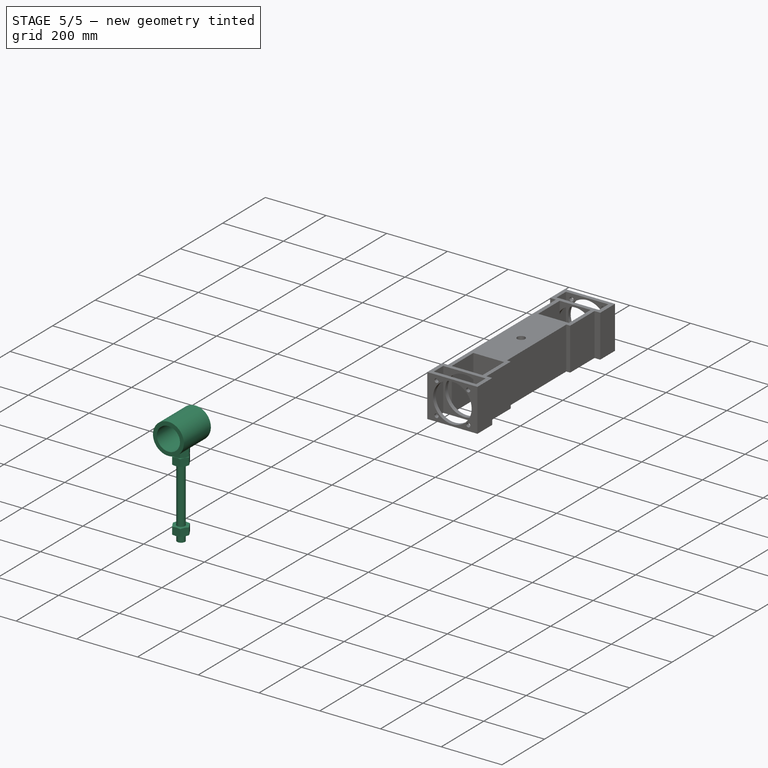
[diagram: stage 5 of 5 — iso view after this stage's code; geometry added in this stage tinted green]
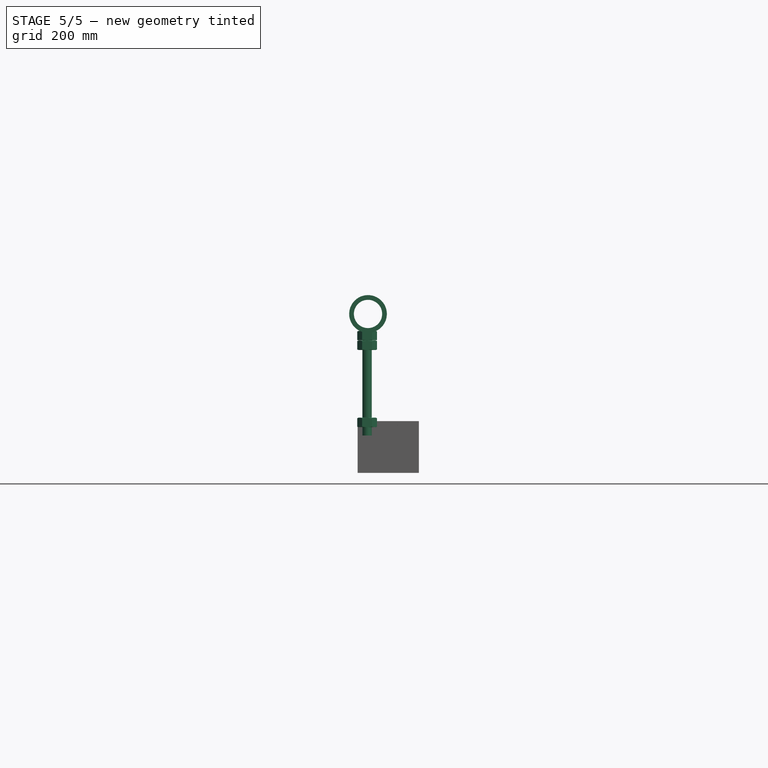
[diagram: stage 5 of 5 — front view after this stage's code; geometry added in this stage tinted green]
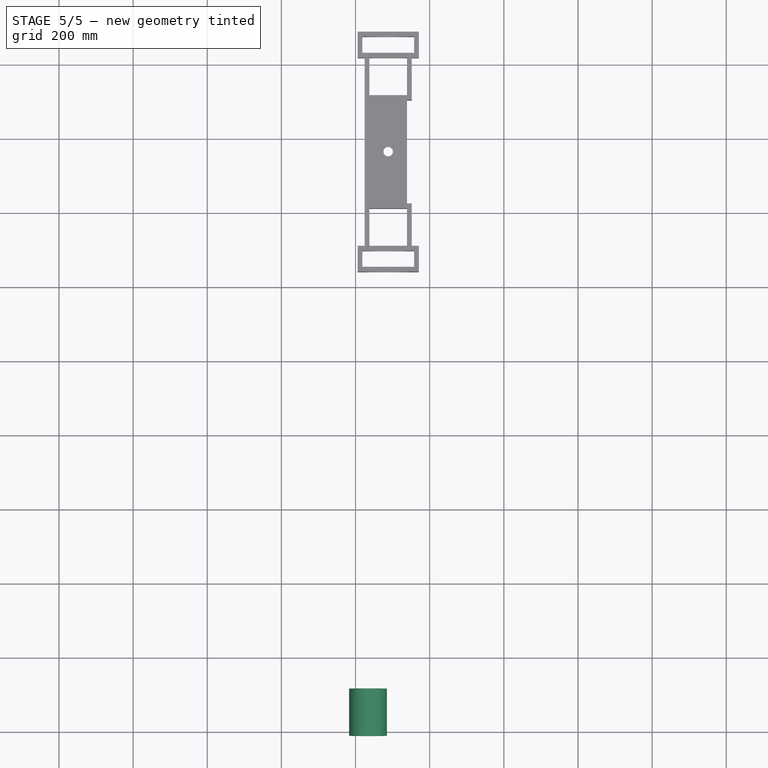
[diagram: stage 5 of 5 — top view after this stage's code; geometry added in this stage tinted green]
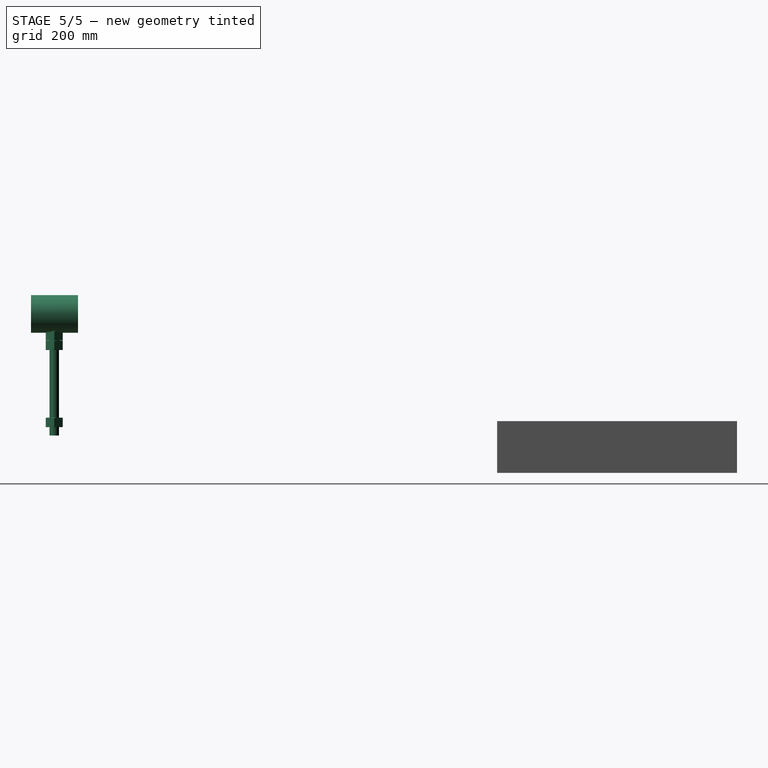
[diagram: stage 5 of 5 — right view after this stage's code; geometry added in this stage tinted green]
FEATURE [Part::Feature] Pocket003003  label="Pocket003005002"
  Placement = pos=(-766.4,1605.28,-99.2001) rot=(-1,0,0;1.5708rad)
  shape: bbox 101.6 x 127 x 101.6 mm, 4 faces (baked)
FEATURE [Part::Feature] Compound010002  label="15.9 cu in motor"
  Placement = pos=(-979.06,-89.2996,-259.164) rot=(0,0,1;0rad)
  shape: bbox 248.4 x 213.9 x 248.4 mm, 198 faces, 8 solids (baked)
FEATURE [Part::Feature] Part__Mirroring001  label="15.9 cu in motor (Mirror #5)001"
  Placement = pos=(0,1918.06,279.4) rot=(0,0,1;0rad)
  shape: bbox 248.4 x 213.9 x 248.4 mm, 198 faces, 8 solids (baked)
FEATURE [Part::Feature] Pocket003004  label="Tensioner assembly"
  Placement = pos=(-627.101,-276.277,-68.7436) rot=(0,0,1;0rad)
  shape: bbox 292.1 x 595.3 x 165.1 mm, 62 faces (baked)
FEATURE [Part::FeaturePython] Nut003  label="M30-Nut001"  # Fasteners workbench fastener (typed FeaturePython)
  Placement = pos=(-768.852,1668.1,-170.573) rot=(0,0,1;0rad)
  diameter = 19
  invert = false
  matchOuter = false
  offset = 0
  thread = false
  type = 1
FEATURE [Part::FeaturePython] Nut004  label="M30-Nut"  # Fasteners workbench fastener (typed FeaturePython)
  Placement = pos=(-768.852,245.703,82.9189) rot=(0,0,1;0rad)
  diameter = 19
  invert = false
  matchOuter = false
  offset = 0
  thread = false
  type = 1
FEATURE [Part::Cylinder] Cylinder056  label="Threaded 1 in rod"
  Angle = 360
  Height = 279.4
  Placement = pos=(-768.852,245.703,-147.713) rot=(0,0,1;0rad)
  Radius = 12.7
FEATURE [Part::MultiFuse] Fusion003
  Placement = pos=(0,-1422.4,279.4) rot=(0,0,1;0rad)
  Shapes = -> [Nut003,Pocket003003]
FEATURE [Part::FeaturePython] Nut005  label="M30-Nut002"  # Fasteners workbench fastener (typed FeaturePython)
  Placement = pos=(-768.852,245.703,-125.158) rot=(0,0,1;0rad)
  diameter = 19
  invert = false
  matchOuter = false
  offset = 0
  thread = false
  type = 1
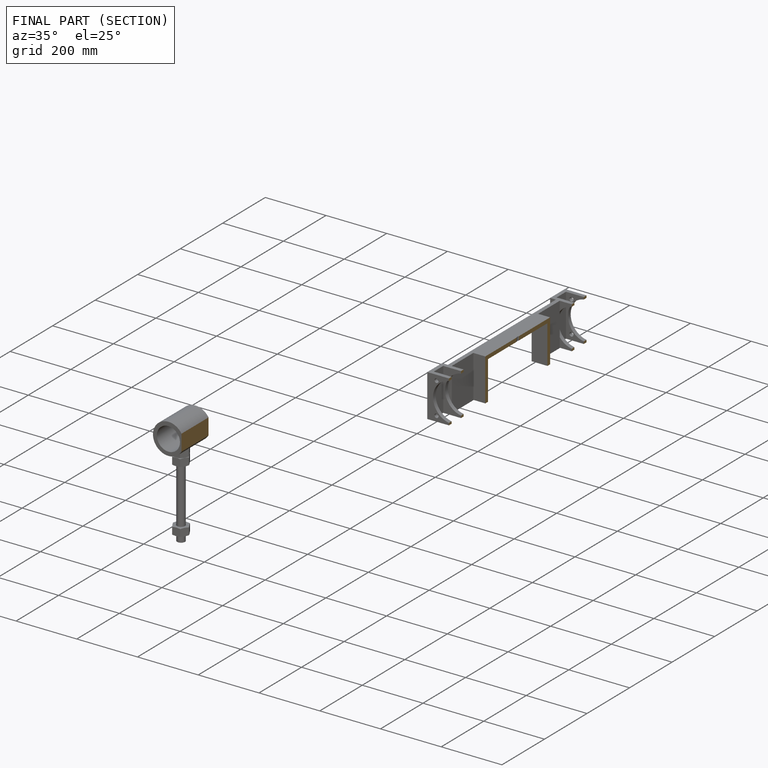
[diagram: finished part — half-section view (interior)]
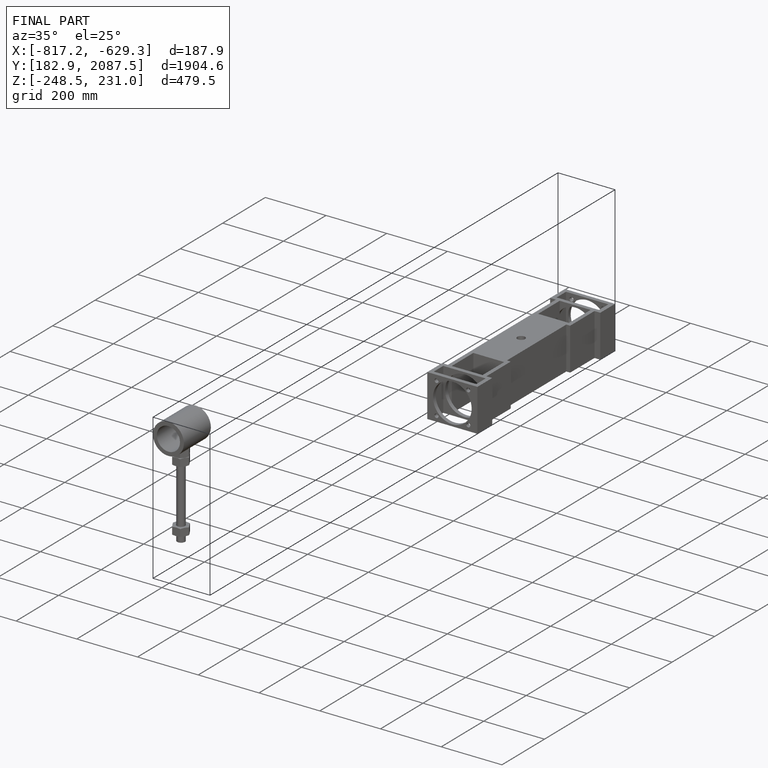
[diagram: finished part — iso view with bounding-box wireframe]
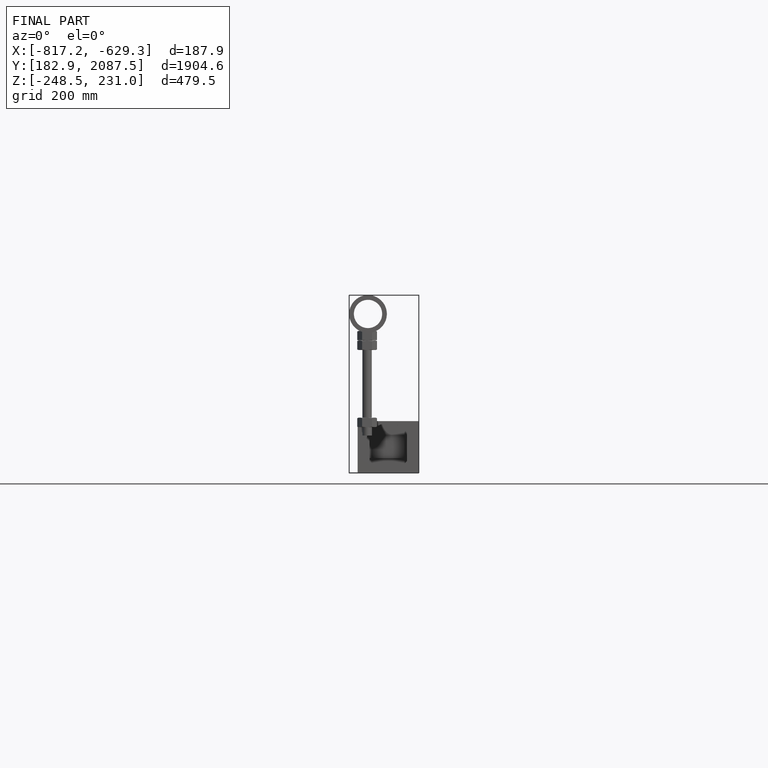
[diagram: finished part — front view with bounding-box wireframe]
